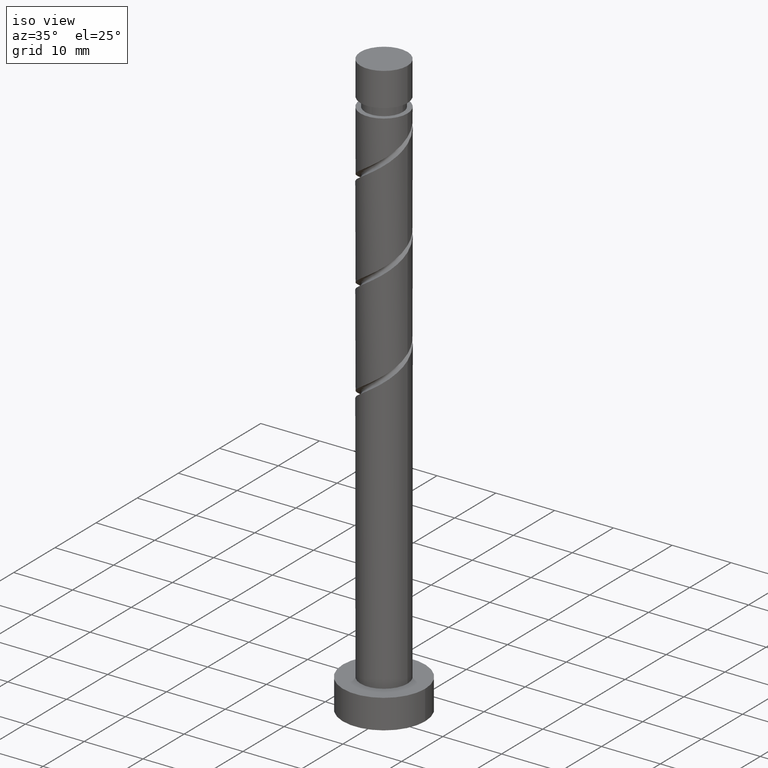
[diagram: clean part render]
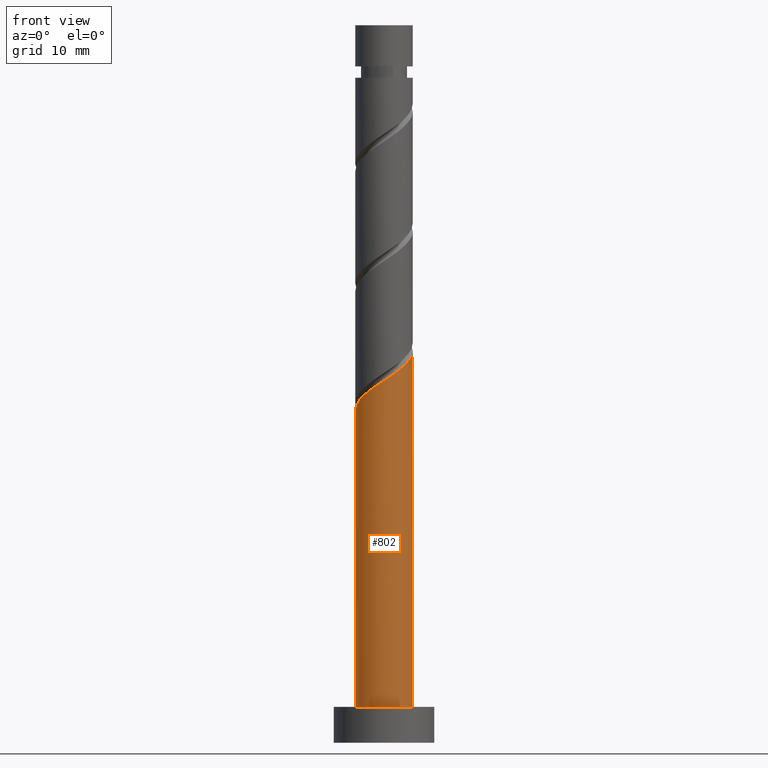
[diagram: tour spotlight — one face highlighted and labeled with its STEP entity id]
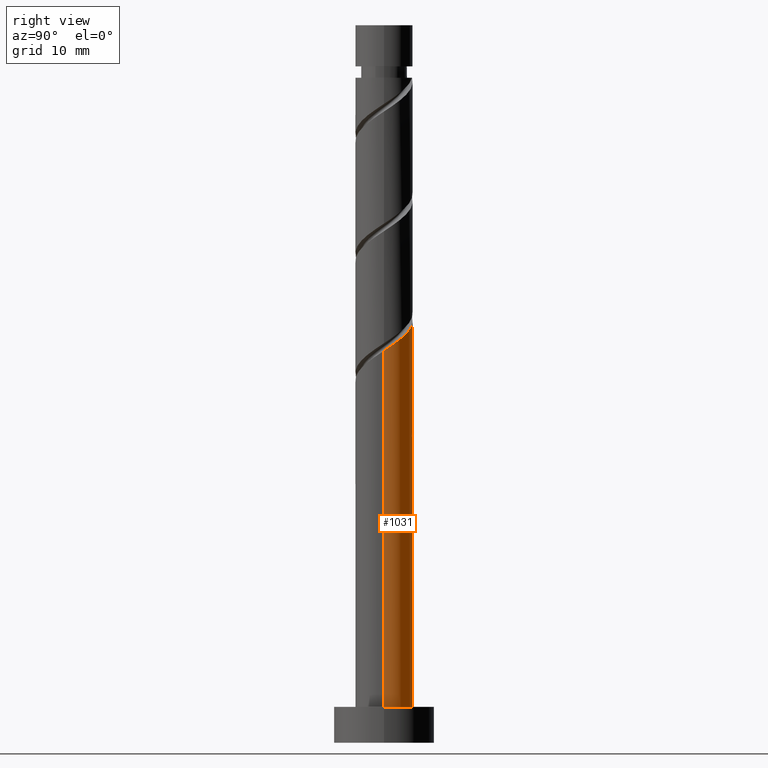
[diagram: tour spotlight — one face highlighted and labeled with its STEP entity id]
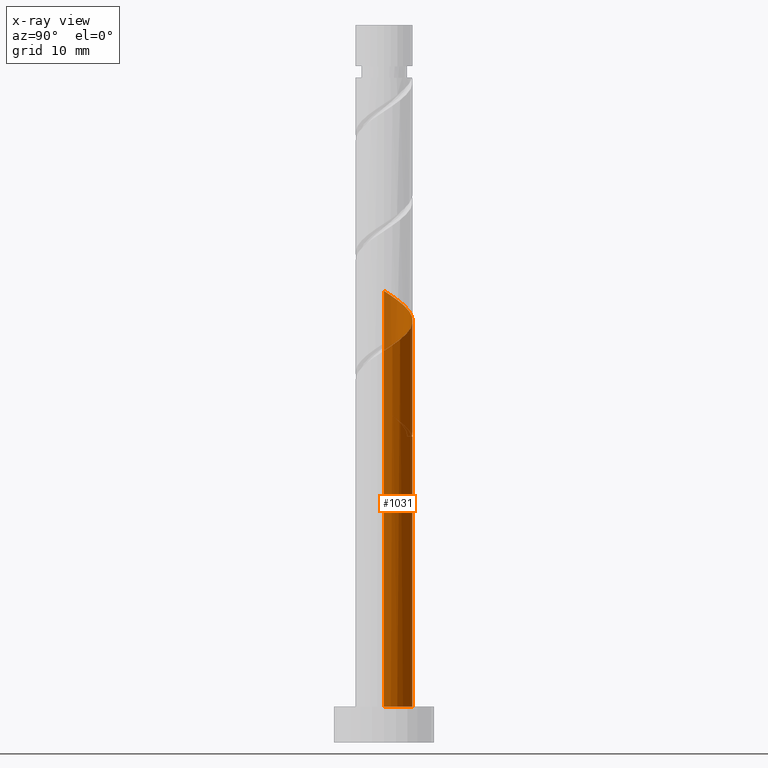
[diagram: x-ray of the same camera — body ghosted, this tour face saturated]
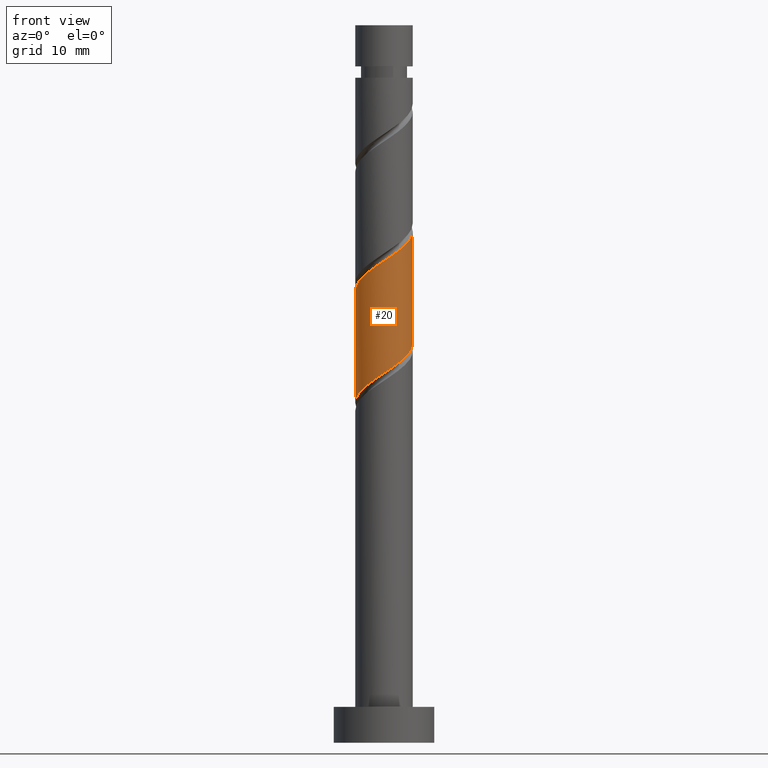
[diagram: tour spotlight — one face highlighted and labeled with its STEP entity id]
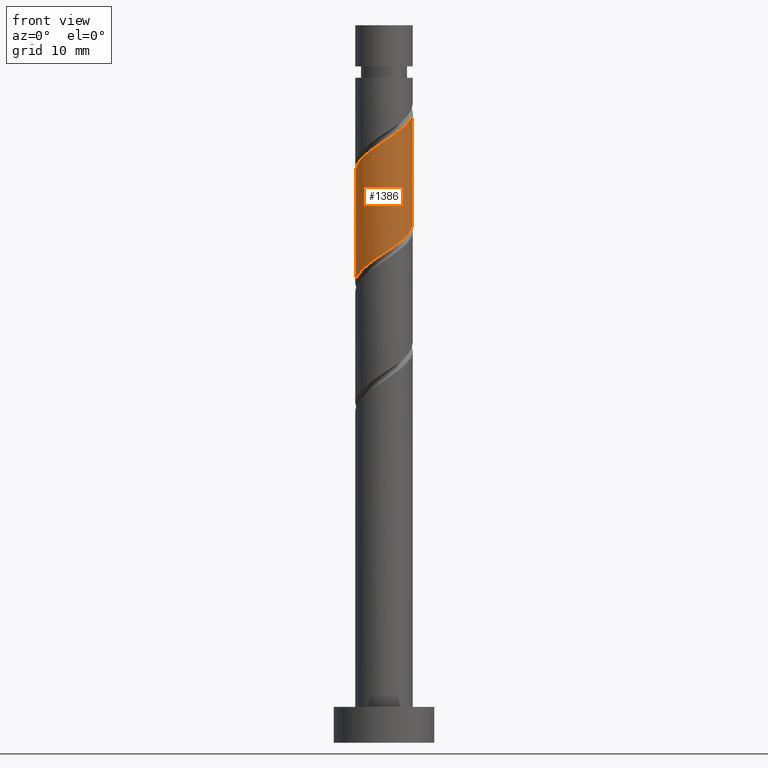
[diagram: tour spotlight — one face highlighted and labeled with its STEP entity id]
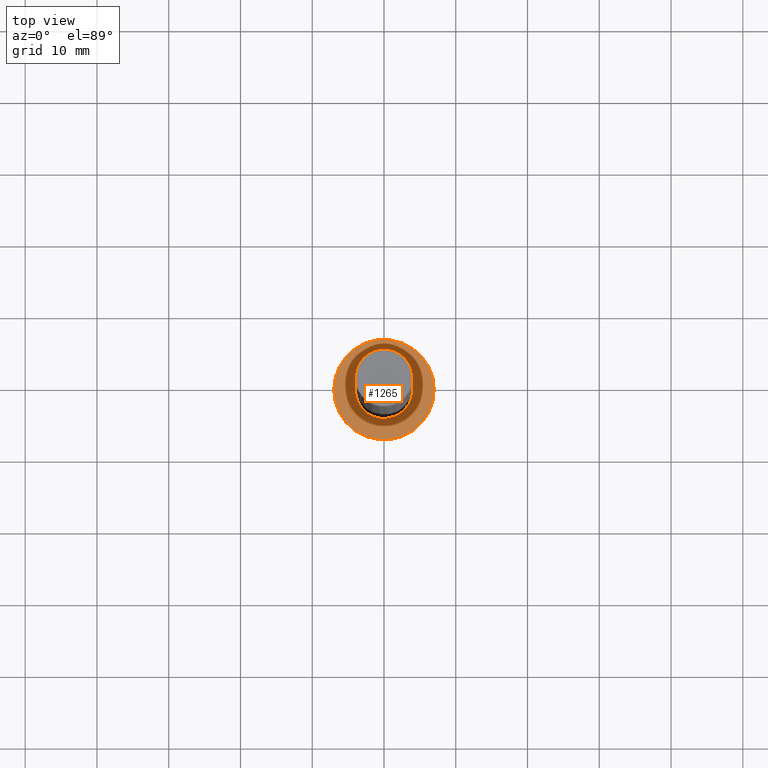
[diagram: tour spotlight — one face highlighted and labeled with its STEP entity id]
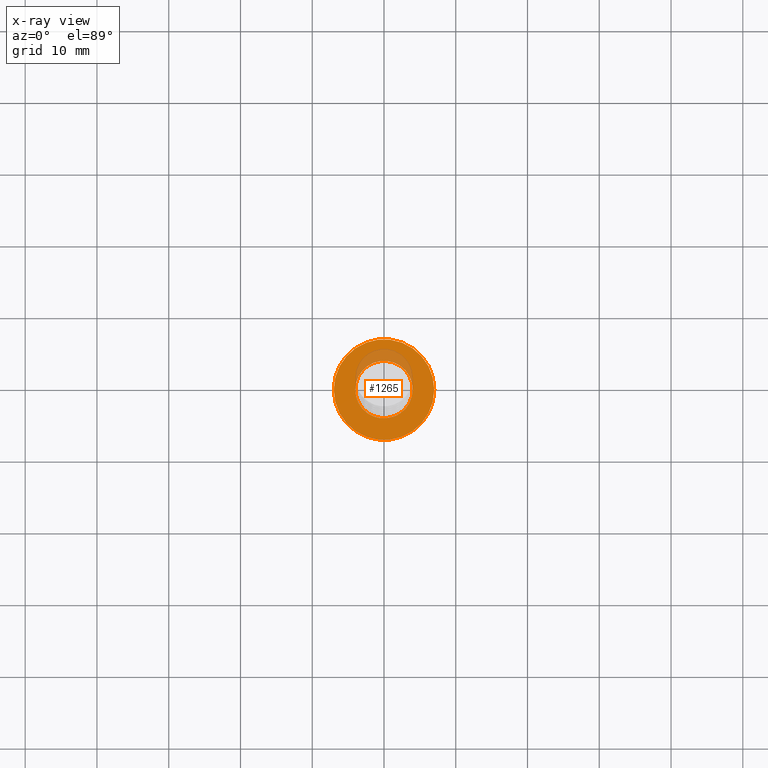
[diagram: x-ray of the same camera — body ghosted, this tour face saturated]
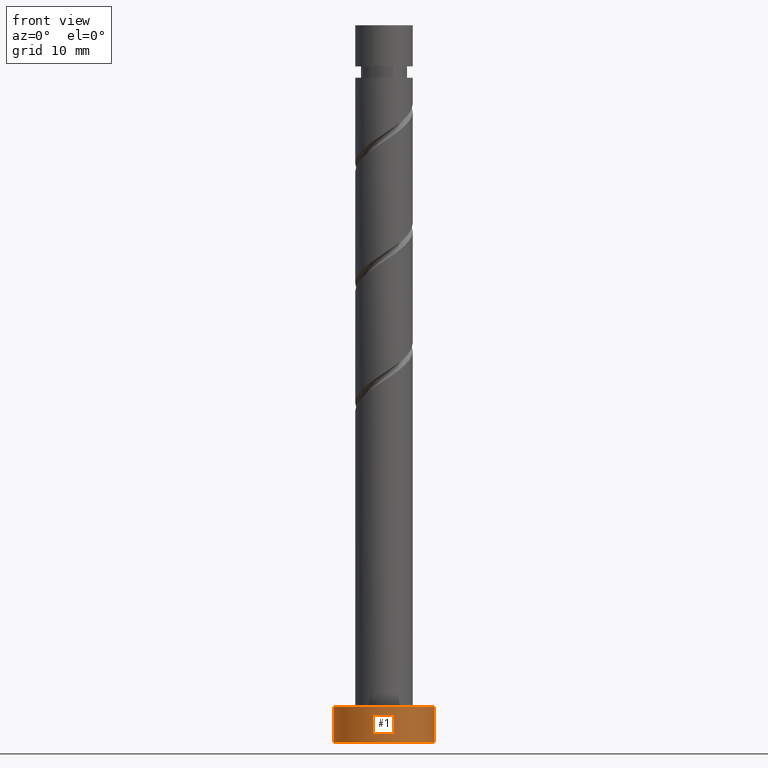
[diagram: tour spotlight — one face highlighted and labeled with its STEP entity id]
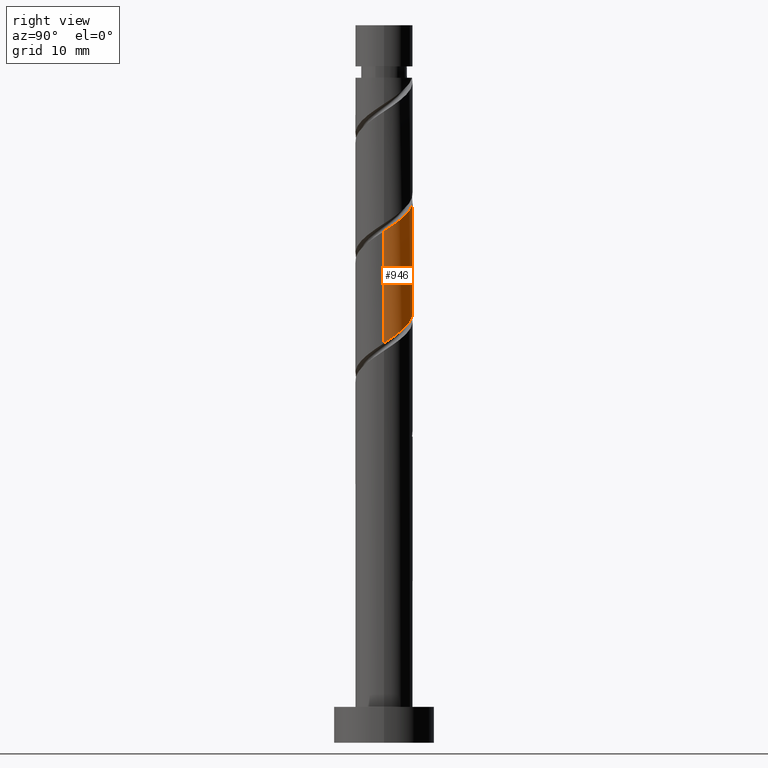
[diagram: tour spotlight — one face highlighted and labeled with its STEP entity id]
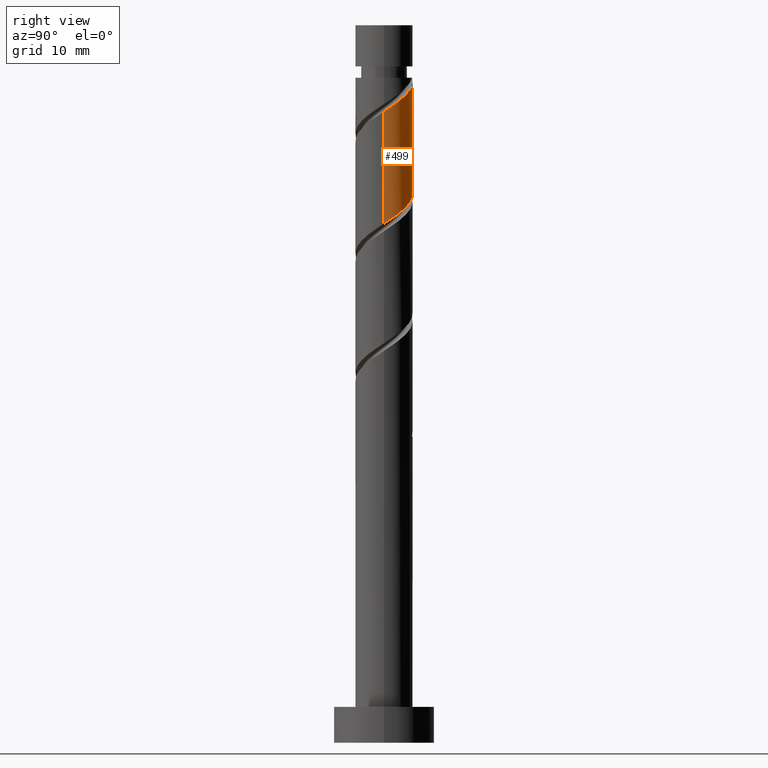
[diagram: tour spotlight — one face highlighted and labeled with its STEP entity id]
A machine part: a face-by-face anatomy tour. The part has 21 B-rep faces; the first image is the clean iso view, then the 8 largest visible faces are spotlighted one at a time (largest first), each with its STEP entity span.

Face 1 — front view, entity #802. In plain terms, the highlighted cylindrical surface (edge-blend (fillet) strip) has radius 4 mm, axis along (-0, -0, -1).
Definition (entity closure, byte-faithful):
#5 = CARTESIAN_POINT ( 'NONE',  ( -4.000000000000006217, -0.05160669732808480237, 46.33904958792853535 ) ) ;
#101 = EDGE_CURVE ( 'NONE', #729, #1119, #242, .T. ) ;
#104 = CARTESIAN_POINT ( 'NONE',  ( -0.5927330798976050419, -3.955839670157924814, 50.07662784305901482 ) ) ;
#112 = CARTESIAN_POINT ( 'NONE',  ( 3.792814557677653298, -1.270652482415441931, 53.78033154676271721 ) ) ;
#142 = VECTOR ( 'NONE', #468, 1000.000000000000000 ) ;
#169 = VERTEX_POINT ( 'NONE', #224 ) ;
#197 = DIRECTION ( 'NONE',  ( 0.000000000000000000, 0.000000000000000000, 1.000000000000000000 ) ) ;
#223 = VERTEX_POINT ( 'NONE', #980 ) ;
#224 = CARTESIAN_POINT ( 'NONE',  ( 4.000000000000006217, -3.548004554887252484E-15, 54.63836554732951356 ) ) ;
#232 = ORIENTED_EDGE ( 'NONE', *, *, #716, .F. ) ;
#234 = CARTESIAN_POINT ( 'NONE',  ( -1.290254345103320821, -3.851324835813549452, 49.61366488009603160 ) ) ;
#242 = CIRCLE ( 'NONE', #521, 4.000000000000000000 ) ;
#250 = EDGE_CURVE ( 'NONE', #223, #729, #1436, .T. ) ;
#314 = DIRECTION ( 'NONE',  ( -1.000000000000000000, 0.000000000000000000, 0.000000000000000000 ) ) ;
#318 = CARTESIAN_POINT ( 'NONE',  ( 2.088704843775643027, -3.411350476803610920, 51.92847969491085536 ) ) ;
#327 = CARTESIAN_POINT ( 'NONE',  ( 0.000000000000000000, 0.000000000000000000, 100.0000000000000000 ) ) ;
#335 = CARTESIAN_POINT ( 'NONE',  ( 4.000000000000005329, -0.6522174872818314872, 54.20844603496387748 ) ) ;
#386 = CARTESIAN_POINT ( 'NONE',  ( -4.000000000000000000, 0.000000000000000000, 100.0000000000000000 ) ) ;
#413 = AXIS2_PLACEMENT_3D ( 'NONE', #327, #886, #314 ) ;
#424 = DIRECTION ( 'NONE',  ( 1.000000000000000000, 0.000000000000000000, 0.000000000000000000 ) ) ;
#429 = CARTESIAN_POINT ( 'NONE',  ( 1.487191714062478631, -3.779645495497716112, 51.46551673194787924 ) ) ;
#436 = CARTESIAN_POINT ( 'NONE',  ( -2.529673159369203894, -3.177768552424688586, 48.68773895417012199 ) ) ;
#468 = DIRECTION ( 'NONE',  ( -0.000000000000000000, -0.000000000000000000, -1.000000000000000000 ) ) ;
#521 = AXIS2_PLACEMENT_3D ( 'NONE', #761, #197, #424 ) ;
#556 = CARTESIAN_POINT ( 'NONE',  ( -3.463976056615510668, -2.120926482744445618, 47.76181302824418395 ) ) ;
#573 = CYLINDRICAL_SURFACE ( 'NONE', #413, 4.000000000000000000 ) ;
#680 = CARTESIAN_POINT ( 'NONE',  ( -1.909963752236263801, -3.514546694119118797, 49.15070191713309100 ) ) ;
#695 = LINE ( 'NONE', #1281, #1400 ) ;
#716 = EDGE_CURVE ( 'NONE', #223, #169, #1061, .T. ) ;
#729 = VERTEX_POINT ( 'NONE', #1002 ) ;
#761 = CARTESIAN_POINT ( 'NONE',  ( 0.000000000000000000, 0.000000000000000000, 5.000000000000000000 ) ) ;
#783 = CARTESIAN_POINT ( 'NONE',  ( 2.690217973488804315, -3.043055458109504396, 52.39144265787382437 ) ) ;
#795 = CARTESIAN_POINT ( 'NONE',  ( 4.000000000000006217, -3.548004554887252090E-15, 54.63836554732951356 ) ) ;
#802 = ADVANCED_FACE ( 'NONE', ( #1383 ), #573, .T. ) ;
#885 = CARTESIAN_POINT ( 'NONE',  ( -2.996824607992357503, -2.649347517584566436, 48.22477599120716718 ) ) ;
#886 = DIRECTION ( 'NONE',  ( -0.000000000000000000, -0.000000000000000000, -1.000000000000000000 ) ) ;
#926 = ORIENTED_EDGE ( 'NONE', *, *, #1401, .F. ) ;
#978 = ORIENTED_EDGE ( 'NONE', *, *, #101, .T. ) ;
#980 = CARTESIAN_POINT ( 'NONE',  ( -4.000000000000006217, 3.488248688699677647E-15, 46.30503221399617786 ) ) ;
#1002 = CARTESIAN_POINT ( 'NONE',  ( -4.000000000000000000, 0.000000000000000000, 5.000000000000000000 ) ) ;
#1032 = CARTESIAN_POINT ( 'NONE',  ( 0.1047881853081108344, -4.060354504502297956, 50.53959080602196963 ) ) ;
#1061 =( BOUNDED_CURVE ( )  B_SPLINE_CURVE ( 2, ( #1144, #5, #1375, #1477, #1390, #556, #885, #436, #680, #234, #104, #1032, #1480, #429, #318, #783, #1263, #1151, #112, #335, #795 ),
 .UNSPECIFIED., .F., .T. ) 
 B_SPLINE_CURVE_WITH_KNOTS ( ( 3, 2, 2, 2, 2, 2, 2, 2, 2, 2, 3 ),
 ( 0.05452480538552911815, 0.05555555555555558023, 0.06944444444444441977, 0.08333333333333337034, 0.09722222222222220989, 0.1111111111111111605, 0.1250000000000000000, 0.1388888888888888395, 0.1527777777777777901, 0.1666666666666666297, 0.1795248053855290626 ),
 .UNSPECIFIED. ) 
 CURVE ( )  GEOMETRIC_REPRESENTATION_ITEM ( )  RATIONAL_B_SPLINE_CURVE ( ( 0.9071930855141264738, 0.9080659294509740853, 0.9090909090909140566, 0.8952797754656487417, 0.9090909090909140566, 0.8952797754656487417, 0.9090909090909140566, 0.8952797754656487417, 0.9090909090909140566, 0.8952797754656487417, 0.9090909090909140566, 0.8952797754656487417, 0.9090909090909140566, 0.8952797754656487417, 0.9090909090909140566, 0.8952797754656487417, 0.9090909090909140566, 0.8952797754656487417, 0.9090909090909140566, 0.8963047551055888240, 0.9071930855141263628 ) ) 
 REPRESENTATION_ITEM ( '' )  );
#1119 = VERTEX_POINT ( 'NONE', #1216 ) ;
#1144 = CARTESIAN_POINT ( 'NONE',  ( -4.000000000000006217, 3.488248688699677647E-15, 46.30503221399617075 ) ) ;
#1151 = CARTESIAN_POINT ( 'NONE',  ( 3.568764241923622293, -1.939428021757852560, 53.31736858379974109 ) ) ;
#1155 = ORIENTED_EDGE ( 'NONE', *, *, #250, .T. ) ;
#1216 = CARTESIAN_POINT ( 'NONE',  ( 4.000000000000000000, 4.898587196589412829E-16, 5.000000000000000000 ) ) ;
#1263 = CARTESIAN_POINT ( 'NONE',  ( 3.129491107706214859, -2.491241739933678812, 52.85440562083677918 ) ) ;
#1281 = CARTESIAN_POINT ( 'NONE',  ( 4.000000000000000000, 4.898587196589412829E-16, 100.0000000000000000 ) ) ;
#1375 = CARTESIAN_POINT ( 'NONE',  ( -3.998668596011906384, -0.1031962173155086954, 46.37292413935530533 ) ) ;
#1383 = FACE_OUTER_BOUND ( 'NONE', #1416, .T. ) ;
#1390 = CARTESIAN_POINT ( 'NONE',  ( -3.722224187603818901, -1.464597930224245115, 47.29885006528124336 ) ) ;
#1396 = DIRECTION ( 'NONE',  ( -0.000000000000000000, -0.000000000000000000, -1.000000000000000000 ) ) ;
#1400 = VECTOR ( 'NONE', #1396, 1000.000000000000000 ) ;
#1401 = EDGE_CURVE ( 'NONE', #169, #1119, #695, .T. ) ;
#1416 = EDGE_LOOP ( 'NONE', ( #926, #232, #1155, #978 ) ) ;
#1436 = LINE ( 'NONE', #386, #142 ) ;
#1477 = CARTESIAN_POINT ( 'NONE',  ( -3.980472318592127134, -0.8082693777040446115, 46.83588710231826724 ) ) ;
#1480 = CARTESIAN_POINT ( 'NONE',  ( 0.7959899496852955725, -3.920000000000007034, 51.00255376898493154 ) ) ;

Face 2 — right view, entity #1031. An x-ray twin of the same camera follows (body ghosted, this face saturated) — the face is partly hidden behind the body. In plain terms, the highlighted cylindrical surface (edge-blend (fillet) strip) has radius 4 mm, axis along (-0, -0, -1).
Definition (entity closure, byte-faithful):
#18 = CARTESIAN_POINT ( 'NONE',  ( -0.7959899496852952394, 3.920000000000007034, 59.33588710231828856 ) ) ;
#59 = CARTESIAN_POINT ( 'NONE',  ( -1.487191714062479964, 3.779645495497714780, 43.13218339861454353 ) ) ;
#96 = VERTEX_POINT ( 'NONE', #875 ) ;
#111 = EDGE_CURVE ( 'NONE', #200, #96, #115, .T. ) ;
#115 = LINE ( 'NONE', #1043, #1335 ) ;
#142 = VECTOR ( 'NONE', #468, 1000.000000000000000 ) ;
#169 = VERTEX_POINT ( 'NONE', #224 ) ;
#185 = CYLINDRICAL_SURFACE ( 'NONE', #238, 4.000000000000000000 ) ;
#200 = VERTEX_POINT ( 'NONE', #482 ) ;
#223 = VERTEX_POINT ( 'NONE', #980 ) ;
#224 = CARTESIAN_POINT ( 'NONE',  ( 4.000000000000006217, -3.548004554887252484E-15, 54.63836554732951356 ) ) ;
#227 = CARTESIAN_POINT ( 'NONE',  ( -0.1047881853081119863, 4.060354504502297956, 58.87292413935529112 ) ) ;
#233 = CARTESIAN_POINT ( 'NONE',  ( -3.568764241923622293, 1.939428021757852116, 61.65070191713308390 ) ) ;
#238 = AXIS2_PLACEMENT_3D ( 'NONE', #1086, #518, #510 ) ;
#241 = CARTESIAN_POINT ( 'NONE',  ( 1.909963752236263801, 3.514546694119118797, 57.48403525046641249 ) ) ;
#246 = CARTESIAN_POINT ( 'NONE',  ( 4.000000000000006217, -3.548004554887252090E-15, 54.63836554732951356 ) ) ;
#250 = EDGE_CURVE ( 'NONE', #223, #729, #1436, .T. ) ;
#325 = AXIS2_PLACEMENT_3D ( 'NONE', #484, #634, #1188 ) ;
#333 = CARTESIAN_POINT ( 'NONE',  ( 1.290254345103323264, 3.851324835813548564, 57.94699821342936730 ) ) ;
#354 = CARTESIAN_POINT ( 'NONE',  ( 3.463976056615512000, 2.120926482744443398, 56.09514636157751966 ) ) ;
#361 = ORIENTED_EDGE ( 'NONE', *, *, #250, .F. ) ;
#386 = CARTESIAN_POINT ( 'NONE',  ( -4.000000000000000000, 0.000000000000000000, 100.0000000000000000 ) ) ;
#396 = CARTESIAN_POINT ( 'NONE',  ( -2.690217973488805647, 3.043055458109504396, 44.05810932454048867 ) ) ;
#423 =( BOUNDED_CURVE ( )  B_SPLINE_CURVE ( 2, ( #1000, #59, #511, #396, #1128, #861, #1458, #526, #1323 ),
 .UNSPECIFIED., .F., .T. ) 
 B_SPLINE_CURVE_WITH_KNOTS ( ( 3, 2, 2, 2, 3 ),
 ( 0.000000000000000000, 0.01388888888888884128, 0.02777777777777779011, 0.04166666666666662966, 0.05452480538552911815 ),
 .UNSPECIFIED. ) 
 CURVE ( )  GEOMETRIC_REPRESENTATION_ITEM ( )  RATIONAL_B_SPLINE_CURVE ( ( 0.9090909090909140566, 0.8952797754656487417, 0.9090909090909140566, 0.8952797754656487417, 0.9090909090909140566, 0.8952797754656487417, 0.9090909090909140566, 0.8963047551055887130, 0.9071930855141264738 ) ) 
 REPRESENTATION_ITEM ( '' )  );
#430 = CARTESIAN_POINT ( 'NONE',  ( -3.463976056615505783, 2.120926482744443842, 45.90996117639232210 ) ) ;
#444 = CARTESIAN_POINT ( 'NONE',  ( -2.996824607992351730, 2.649347517584563327, 45.44699821342936730 ) ) ;
#450 = CARTESIAN_POINT ( 'NONE',  ( 2.996824607992357059, 2.649347517584567324, 56.55810932454050288 ) ) ;
#454 = DIRECTION ( 'NONE',  ( -0.000000000000000000, -0.000000000000000000, -1.000000000000000000 ) ) ;
#467 = CARTESIAN_POINT ( 'NONE',  ( -2.088704843775643027, 3.411350476803610920, 60.26181302824421238 ) ) ;
#468 = DIRECTION ( 'NONE',  ( -0.000000000000000000, -0.000000000000000000, -1.000000000000000000 ) ) ;
#477 = CARTESIAN_POINT ( 'NONE',  ( 3.980472318592127134, 0.8082693777040439453, 55.16922043565160294 ) ) ;
#482 = CARTESIAN_POINT ( 'NONE',  ( -4.000000000000006217, 3.488248688699677647E-15, 62.97169888066282795 ) ) ;
#484 = CARTESIAN_POINT ( 'NONE',  ( 0.000000000000000000, 0.000000000000000000, 5.000000000000000000 ) ) ;
#492 = DIRECTION ( 'NONE',  ( 0.000000000000000000, -0.000000000000000000, -1.000000000000000000 ) ) ;
#510 = DIRECTION ( 'NONE',  ( -1.000000000000000000, 0.000000000000000000, 0.000000000000000000 ) ) ;
#511 = CARTESIAN_POINT ( 'NONE',  ( -2.088704843775643027, 3.411350476803610920, 43.59514636157753387 ) ) ;
#517 = EDGE_CURVE ( 'NONE', #1119, #729, #1457, .T. ) ;
#518 = DIRECTION ( 'NONE',  ( -0.000000000000000000, -0.000000000000000000, -1.000000000000000000 ) ) ;
#526 = CARTESIAN_POINT ( 'NONE',  ( -4.000000000000006217, 0.6522174872818262692, 45.87511270163054178 ) ) ;
#572 = EDGE_CURVE ( 'NONE', #717, #1294, #693, .T. ) ;
#577 = CARTESIAN_POINT ( 'NONE',  ( -3.792814557677653298, 1.270652482415439932, 62.11366488009605291 ) ) ;
#583 = CARTESIAN_POINT ( 'NONE',  ( -4.000000000000006217, 3.488248688699677647E-15, 62.97169888066282795 ) ) ;
#584 = CARTESIAN_POINT ( 'NONE',  ( 0.7959899496852965717, 3.920000000000000817, 42.66922043565158873 ) ) ;
#589 = CARTESIAN_POINT ( 'NONE',  ( -3.129491107706214859, 2.491241739933678812, 61.18773895417012199 ) ) ;
#599 = CARTESIAN_POINT ( 'NONE',  ( -1.909963752236258916, 3.514546694119113468, 44.52107228750344348 ) ) ;
#606 = ORIENTED_EDGE ( 'NONE', *, *, #517, .T. ) ;
#634 = DIRECTION ( 'NONE',  ( 0.000000000000000000, 0.000000000000000000, 1.000000000000000000 ) ) ;
#642 = EDGE_CURVE ( 'NONE', #717, #223, #423, .T. ) ;
#645 = AXIS2_PLACEMENT_3D ( 'NONE', #1447, #492, #973 ) ;
#665 = ORIENTED_EDGE ( 'NONE', *, *, #1420, .F. ) ;
#681 = CARTESIAN_POINT ( 'NONE',  ( -0.5927330798976027104, 3.955839670157917709, 43.59514636157751966 ) ) ;
#686 = CARTESIAN_POINT ( 'NONE',  ( -0.7959899496852950174, 3.920000000000006146, 42.66922043565158873 ) ) ;
#693 = CIRCLE ( 'NONE', #645, 4.000000000000000000 ) ;
#695 = LINE ( 'NONE', #1281, #1400 ) ;
#717 = VERTEX_POINT ( 'NONE', #686 ) ;
#729 = VERTEX_POINT ( 'NONE', #1002 ) ;
#807 = CARTESIAN_POINT ( 'NONE',  ( -1.290254345103319489, 3.851324835813545455, 44.05810932454048867 ) ) ;
#824 = CARTESIAN_POINT ( 'NONE',  ( 0.1047881853081125969, 4.060354504502291739, 43.13218339861456485 ) ) ;
#844 = FACE_OUTER_BOUND ( 'NONE', #1234, .T. ) ;
#861 = CARTESIAN_POINT ( 'NONE',  ( -3.568764241923622293, 1.939428021757852116, 44.98403525046641249 ) ) ;
#875 = CARTESIAN_POINT ( 'NONE',  ( -4.000000000000000000, -2.524685346425049280E-15, 47.36674199064033530 ) ) ;
#887 = ORIENTED_EDGE ( 'NONE', *, *, #642, .F. ) ;
#895 =( BOUNDED_CURVE ( )  B_SPLINE_CURVE ( 2, ( #1373, #1395, #931, #944, #1409, #430, #444, #1163, #599, #807, #681, #824, #920 ),
 .UNSPECIFIED., .F., .T. ) 
 B_SPLINE_CURVE_WITH_KNOTS ( ( 3, 2, 2, 2, 2, 2, 3 ),
 ( 0.9295248053855290626, 0.9305555555555555802, 0.9444444444444444198, 0.9583333333333333703, 0.9722222222222222099, 0.9861111111111111605, 1.000000000000000000 ),
 .UNSPECIFIED. ) 
 CURVE ( )  GEOMETRIC_REPRESENTATION_ITEM ( )  RATIONAL_B_SPLINE_CURVE ( ( 0.9071930855141210337, 0.9080659294509687562, 0.9090909090909088386, 0.8952797754656434126, 0.9090909090909088386, 0.8952797754656434126, 0.9090909090909088386, 0.8952797754656434126, 0.9090909090909088386, 0.8952797754656434126, 0.9090909090909088386, 0.8952797754656434126, 0.9090909090909088386 ) ) 
 REPRESENTATION_ITEM ( '' )  );
#913 = CARTESIAN_POINT ( 'NONE',  ( 3.998668596011906384, 0.1031962173155090007, 54.70625747268865524 ) ) ;
#920 = CARTESIAN_POINT ( 'NONE',  ( 0.7959899496852966827, 3.920000000000000817, 42.66922043565158162 ) ) ;
#931 = CARTESIAN_POINT ( 'NONE',  ( -3.998668596011898835, 0.1031962173155094725, 47.29885006528121494 ) ) ;
#942 = CARTESIAN_POINT ( 'NONE',  ( -4.000000000000005329, 0.6522174872818291558, 62.54177936829722029 ) ) ;
#944 = CARTESIAN_POINT ( 'NONE',  ( -3.980472318592122694, 0.8082693777040443894, 46.83588710231826724 ) ) ;
#950 = CARTESIAN_POINT ( 'NONE',  ( 2.529673159369203894, 3.177768552424688142, 57.02107228750343637 ) ) ;
#966 =( BOUNDED_CURVE ( )  B_SPLINE_CURVE ( 2, ( #246, #1297, #913, #477, #1389, #354, #450, #950, #241, #333, #1414, #227, #18, #1054, #467, #1174, #589, #233, #577, #942, #583 ),
 .UNSPECIFIED., .F., .T. ) 
 B_SPLINE_CURVE_WITH_KNOTS ( ( 3, 2, 2, 2, 2, 2, 2, 2, 2, 2, 3 ),
 ( 0.1795248053855290626, 0.1805555555555555802, 0.1944444444444444198, 0.2083333333333333703, 0.2222222222222222099, 0.2361111111111111605, 0.2500000000000000000, 0.2638888888888888395, 0.2777777777777777901, 0.2916666666666666297, 0.3045248053855290626 ),
 .UNSPECIFIED. ) 
 CURVE ( )  GEOMETRIC_REPRESENTATION_ITEM ( )  RATIONAL_B_SPLINE_CURVE ( ( 0.9071930855141263628, 0.9080659294509739743, 0.9090909090909140566, 0.8952797754656487417, 0.9090909090909140566, 0.8952797754656487417, 0.9090909090909140566, 0.8952797754656487417, 0.9090909090909140566, 0.8952797754656487417, 0.9090909090909140566, 0.8952797754656487417, 0.9090909090909140566, 0.8952797754656487417, 0.9090909090909140566, 0.8952797754656487417, 0.9090909090909140566, 0.8952797754656487417, 0.9090909090909140566, 0.8963047551055888240, 0.9071930855141263628 ) ) 
 REPRESENTATION_ITEM ( '' )  );
#973 = DIRECTION ( 'NONE',  ( -1.000000000000000000, 0.000000000000000000, 0.000000000000000000 ) ) ;
#980 = CARTESIAN_POINT ( 'NONE',  ( -4.000000000000006217, 3.488248688699677647E-15, 46.30503221399617786 ) ) ;
#1000 = CARTESIAN_POINT ( 'NONE',  ( -0.7959899496852951284, 3.920000000000006146, 42.66922043565158873 ) ) ;
#1002 = CARTESIAN_POINT ( 'NONE',  ( -4.000000000000000000, 0.000000000000000000, 5.000000000000000000 ) ) ;
#1031 = ADVANCED_FACE ( 'NONE', ( #844 ), #185, .T. ) ;
#1043 = CARTESIAN_POINT ( 'NONE',  ( -4.000000000000000000, 0.000000000000000000, 100.0000000000000000 ) ) ;
#1054 = CARTESIAN_POINT ( 'NONE',  ( -1.487191714062479964, 3.779645495497714780, 59.79885006528122204 ) ) ;
#1082 = ORIENTED_EDGE ( 'NONE', *, *, #1360, .F. ) ;
#1086 = CARTESIAN_POINT ( 'NONE',  ( 0.000000000000000000, 0.000000000000000000, 100.0000000000000000 ) ) ;
#1119 = VERTEX_POINT ( 'NONE', #1216 ) ;
#1128 = CARTESIAN_POINT ( 'NONE',  ( -3.129491107706214859, 2.491241739933678812, 44.52107228750345058 ) ) ;
#1163 = CARTESIAN_POINT ( 'NONE',  ( -2.529673159369199897, 3.177768552424685033, 44.98403525046643381 ) ) ;
#1174 = CARTESIAN_POINT ( 'NONE',  ( -2.690217973488805647, 3.043055458109504396, 60.72477599120716008 ) ) ;
#1188 = DIRECTION ( 'NONE',  ( 1.000000000000000000, 0.000000000000000000, 0.000000000000000000 ) ) ;
#1191 = ORIENTED_EDGE ( 'NONE', *, *, #111, .F. ) ;
#1216 = CARTESIAN_POINT ( 'NONE',  ( 4.000000000000000000, 4.898587196589412829E-16, 5.000000000000000000 ) ) ;
#1234 = EDGE_LOOP ( 'NONE', ( #665, #1354, #606, #361, #887, #1315, #1082, #1191 ) ) ;
#1281 = CARTESIAN_POINT ( 'NONE',  ( 4.000000000000000000, 4.898587196589412829E-16, 100.0000000000000000 ) ) ;
#1294 = VERTEX_POINT ( 'NONE', #584 ) ;
#1297 = CARTESIAN_POINT ( 'NONE',  ( 4.000000000000006217, 0.05160669732808213089, 54.67238292126187815 ) ) ;
#1315 = ORIENTED_EDGE ( 'NONE', *, *, #572, .T. ) ;
#1323 = CARTESIAN_POINT ( 'NONE',  ( -4.000000000000006217, 3.488248688699677647E-15, 46.30503221399617075 ) ) ;
#1335 = VECTOR ( 'NONE', #454, 1000.000000000000000 ) ;
#1354 = ORIENTED_EDGE ( 'NONE', *, *, #1401, .T. ) ;
#1360 = EDGE_CURVE ( 'NONE', #96, #1294, #895, .T. ) ;
#1373 = CARTESIAN_POINT ( 'NONE',  ( -4.000000000000000000, -2.524685346425049280E-15, 47.36674199064033530 ) ) ;
#1389 = CARTESIAN_POINT ( 'NONE',  ( 3.722224187603820234, 1.464597930224243783, 55.63218339861456485 ) ) ;
#1395 = CARTESIAN_POINT ( 'NONE',  ( -4.000000000000000000, 0.05160669732808288723, 47.33272461670798492 ) ) ;
#1396 = DIRECTION ( 'NONE',  ( -0.000000000000000000, -0.000000000000000000, -1.000000000000000000 ) ) ;
#1400 = VECTOR ( 'NONE', #1396, 1000.000000000000000 ) ;
#1401 = EDGE_CURVE ( 'NONE', #169, #1119, #695, .T. ) ;
#1409 = CARTESIAN_POINT ( 'NONE',  ( -3.722224187603812240, 1.464597930224243783, 46.37292413935528401 ) ) ;
#1414 = CARTESIAN_POINT ( 'NONE',  ( 0.5927330798976073734, 3.955839670157923926, 58.40996117639235052 ) ) ;
#1420 = EDGE_CURVE ( 'NONE', #169, #200, #966, .T. ) ;
#1436 = LINE ( 'NONE', #386, #142 ) ;
#1447 = CARTESIAN_POINT ( 'NONE',  ( 0.000000000000000000, 0.000000000000000000, 42.66922043565158873 ) ) ;
#1457 = CIRCLE ( 'NONE', #325, 4.000000000000000000 ) ;
#1458 = CARTESIAN_POINT ( 'NONE',  ( -3.792814557677653298, 1.270652482415439932, 45.44699821342938151 ) ) ;

Face 3 — front view, entity #20. In plain terms, the highlighted cylindrical surface (edge-blend (fillet) strip) has radius 4 mm, axis along (-0, -0, -1).
Definition (entity closure, byte-faithful):
#20 = ADVANCED_FACE ( 'NONE', ( #306 ), #854, .T. ) ;
#51 = VERTEX_POINT ( 'NONE', #298 ) ;
#57 = CARTESIAN_POINT ( 'NONE',  ( 3.792814557677653298, -1.270652482415441931, 70.44699821342935309 ) ) ;
#82 = CARTESIAN_POINT ( 'NONE',  ( 2.996824607992351286, -2.649347517584564216, 53.78033154676269589 ) ) ;
#88 = DIRECTION ( 'NONE',  ( -0.000000000000000000, -0.000000000000000000, -1.000000000000000000 ) ) ;
#96 = VERTEX_POINT ( 'NONE', #875 ) ;
#111 = EDGE_CURVE ( 'NONE', #200, #96, #115, .T. ) ;
#115 = LINE ( 'NONE', #1043, #1335 ) ;
#148 = CARTESIAN_POINT ( 'NONE',  ( 0.1047881853081108344, -4.060354504502297956, 67.20625747268861971 ) ) ;
#166 = CARTESIAN_POINT ( 'NONE',  ( -1.290254345103320821, -3.851324835813549452, 66.28033154676269589 ) ) ;
#191 = CARTESIAN_POINT ( 'NONE',  ( 3.463976056615504895, -2.120926482744446062, 54.24329450972567201 ) ) ;
#200 = VERTEX_POINT ( 'NONE', #482 ) ;
#209 = ORIENTED_EDGE ( 'NONE', *, *, #111, .T. ) ;
#211 = CARTESIAN_POINT ( 'NONE',  ( -3.568764241923617409, -1.939428021757849230, 48.68773895417011488 ) ) ;
#258 = VECTOR ( 'NONE', #494, 1000.000000000000000 ) ;
#263 = CARTESIAN_POINT ( 'NONE',  ( -0.5927330798976050419, -3.955839670157924814, 66.74329450972567201 ) ) ;
#270 = CARTESIAN_POINT ( 'NONE',  ( -4.000000000000006217, -0.05160669732808201293, 63.00571625459519254 ) ) ;
#282 = CARTESIAN_POINT ( 'NONE',  ( 2.088704843775643027, -3.411350476803610920, 68.59514636157751966 ) ) ;
#298 = CARTESIAN_POINT ( 'NONE',  ( 4.000000000000006217, -3.548004554887252484E-15, 71.30503221399618496 ) ) ;
#306 = FACE_OUTER_BOUND ( 'NONE', #629, .T. ) ;
#332 = ORIENTED_EDGE ( 'NONE', *, *, #536, .F. ) ;
#346 = CARTESIAN_POINT ( 'NONE',  ( -4.000000000000000000, -2.524685346425049280E-15, 47.36674199064033530 ) ) ;
#372 = CARTESIAN_POINT ( 'NONE',  ( -2.996824607992357503, -2.649347517584566436, 64.89144265787383858 ) ) ;
#402 = CARTESIAN_POINT ( 'NONE',  ( 0.000000000000000000, 0.000000000000000000, 100.0000000000000000 ) ) ;
#438 = ORIENTED_EDGE ( 'NONE', *, *, #639, .F. ) ;
#454 = DIRECTION ( 'NONE',  ( -0.000000000000000000, -0.000000000000000000, -1.000000000000000000 ) ) ;
#475 =( BOUNDED_CURVE ( )  B_SPLINE_CURVE ( 2, ( #640, #620, #1231, #646, #1120, #191, #82, #1429, #848, #1136, #897, #539, #1021, #563, #882, #768, #1345, #211, #554, #524, #346 ),
 .UNSPECIFIED., .F., .T. ) 
 B_SPLINE_CURVE_WITH_KNOTS ( ( 3, 2, 2, 2, 2, 2, 2, 2, 2, 2, 3 ),
 ( 0.8045248053855290626, 0.8055555555555555802, 0.8194444444444444198, 0.8333333333333333703, 0.8472222222222222099, 0.8611111111111111605, 0.8750000000000000000, 0.8888888888888888395, 0.9027777777777777901, 0.9166666666666666297, 0.9295248053855290626 ),
 .UNSPECIFIED. ) 
 CURVE ( )  GEOMETRIC_REPRESENTATION_ITEM ( )  RATIONAL_B_SPLINE_CURVE ( ( 0.9071930855141210337, 0.9080659294509687562, 0.9090909090909088386, 0.8952797754656434126, 0.9090909090909088386, 0.8952797754656434126, 0.9090909090909088386, 0.8952797754656434126, 0.9090909090909088386, 0.8952797754656434126, 0.9090909090909088386, 0.8952797754656434126, 0.9090909090909088386, 0.8952797754656434126, 0.9090909090909088386, 0.8952797754656434126, 0.9090909090909088386, 0.8952797754656434126, 0.9090909090909088386, 0.8963047551055834949, 0.9071930855141210337 ) ) 
 REPRESENTATION_ITEM ( '' )  );
#482 = CARTESIAN_POINT ( 'NONE',  ( -4.000000000000006217, 3.488248688699677647E-15, 62.97169888066282795 ) ) ;
#488 = ORIENTED_EDGE ( 'NONE', *, *, #1293, .F. ) ;
#494 = DIRECTION ( 'NONE',  ( -0.000000000000000000, -0.000000000000000000, -1.000000000000000000 ) ) ;
#509 = CARTESIAN_POINT ( 'NONE',  ( -4.000000000000006217, 3.488248688699677647E-15, 62.97169888066282795 ) ) ;
#524 = CARTESIAN_POINT ( 'NONE',  ( -4.000000000000000888, -0.6522174872818270464, 47.79666150300597849 ) ) ;
#536 = EDGE_CURVE ( 'NONE', #200, #51, #1317, .T. ) ;
#539 = CARTESIAN_POINT ( 'NONE',  ( -0.1047881853081140957, -4.060354504502291739, 51.46551673194790055 ) ) ;
#554 = CARTESIAN_POINT ( 'NONE',  ( -3.792814557677647969, -1.270652482415436824, 48.22477599120713876 ) ) ;
#563 = CARTESIAN_POINT ( 'NONE',  ( -1.487191714062479519, -3.779645495497709895, 50.53959080602197673 ) ) ;
#615 = CARTESIAN_POINT ( 'NONE',  ( 1.487191714062478631, -3.779645495497716112, 68.13218339861455775 ) ) ;
#620 = CARTESIAN_POINT ( 'NONE',  ( 4.000000000000000888, -0.05160669732808424726, 55.66605795004132773 ) ) ;
#625 = CARTESIAN_POINT ( 'NONE',  ( 0.7959899496852955725, -3.920000000000007034, 67.66922043565161005 ) ) ;
#629 = EDGE_LOOP ( 'NONE', ( #438, #332, #209, #488 ) ) ;
#635 = CARTESIAN_POINT ( 'NONE',  ( 4.000000000000000888, 1.112953007743586956E-15, 55.70007532397369232 ) ) ;
#639 = EDGE_CURVE ( 'NONE', #51, #1146, #643, .T. ) ;
#640 = CARTESIAN_POINT ( 'NONE',  ( 4.000000000000000888, 1.112953007743586956E-15, 55.70007532397369232 ) ) ;
#643 = LINE ( 'NONE', #655, #258 ) ;
#646 = CARTESIAN_POINT ( 'NONE',  ( 3.980472318592122694, -0.8082693777040449445, 55.16922043565160294 ) ) ;
#655 = CARTESIAN_POINT ( 'NONE',  ( 4.000000000000000000, 4.898587196589412829E-16, 100.0000000000000000 ) ) ;
#724 = CARTESIAN_POINT ( 'NONE',  ( -1.909963752236263801, -3.514546694119118797, 65.81736858379977662 ) ) ;
#768 = CARTESIAN_POINT ( 'NONE',  ( -2.690217973488802539, -3.043055458109501288, 49.61366488009605291 ) ) ;
#825 = CARTESIAN_POINT ( 'NONE',  ( 3.568764241923622293, -1.939428021757852560, 69.98403525046641960 ) ) ;
#836 = CARTESIAN_POINT ( 'NONE',  ( 2.690217973488804315, -3.043055458109504396, 69.05810932454046736 ) ) ;
#848 = CARTESIAN_POINT ( 'NONE',  ( 1.909963752236258916, -3.514546694119113468, 52.85440562083677918 ) ) ;
#854 = CYLINDRICAL_SURFACE ( 'NONE', #1122, 4.000000000000000000 ) ;
#860 = CARTESIAN_POINT ( 'NONE',  ( -3.722224187603818901, -1.464597930224245115, 63.96551673194789345 ) ) ;
#868 = DIRECTION ( 'NONE',  ( -1.000000000000000000, 0.000000000000000000, 0.000000000000000000 ) ) ;
#875 = CARTESIAN_POINT ( 'NONE',  ( -4.000000000000000000, -2.524685346425049280E-15, 47.36674199064033530 ) ) ;
#882 = CARTESIAN_POINT ( 'NONE',  ( -2.088704843775641251, -3.411350476803604703, 50.07662784305900061 ) ) ;
#897 = CARTESIAN_POINT ( 'NONE',  ( 0.5927330798976025994, -3.955839670157917709, 51.92847969491085536 ) ) ;
#953 = CARTESIAN_POINT ( 'NONE',  ( -3.998668596011906384, -0.1031962173155086954, 63.03959080602197673 ) ) ;
#991 = CARTESIAN_POINT ( 'NONE',  ( 4.000000000000005329, -0.6522174872818314872, 70.87511270163052757 ) ) ;
#1021 = CARTESIAN_POINT ( 'NONE',  ( -0.7959899496852959055, -3.920000000000000817, 51.00255376898491022 ) ) ;
#1043 = CARTESIAN_POINT ( 'NONE',  ( -4.000000000000000000, 0.000000000000000000, 100.0000000000000000 ) ) ;
#1107 = CARTESIAN_POINT ( 'NONE',  ( -3.980472318592127134, -0.8082693777040446115, 63.50255376898491022 ) ) ;
#1120 = CARTESIAN_POINT ( 'NONE',  ( 3.722224187603812240, -1.464597930224243560, 54.70625747268863392 ) ) ;
#1122 = AXIS2_PLACEMENT_3D ( 'NONE', #402, #88, #868 ) ;
#1136 = CARTESIAN_POINT ( 'NONE',  ( 1.290254345103317490, -3.851324835813545455, 52.39144265787382437 ) ) ;
#1146 = VERTEX_POINT ( 'NONE', #635 ) ;
#1193 = CARTESIAN_POINT ( 'NONE',  ( 3.129491107706214859, -2.491241739933678812, 69.52107228750345769 ) ) ;
#1231 = CARTESIAN_POINT ( 'NONE',  ( 3.998668596011898835, -0.1031962173155107215, 55.63218339861455064 ) ) ;
#1293 = EDGE_CURVE ( 'NONE', #1146, #96, #475, .T. ) ;
#1314 = CARTESIAN_POINT ( 'NONE',  ( 4.000000000000006217, -3.548004554887252090E-15, 71.30503221399618496 ) ) ;
#1317 =( BOUNDED_CURVE ( )  B_SPLINE_CURVE ( 2, ( #509, #270, #953, #1107, #860, #1438, #372, #1328, #724, #166, #263, #148, #625, #615, #282, #836, #1193, #825, #57, #991, #1314 ),
 .UNSPECIFIED., .F., .T. ) 
 B_SPLINE_CURVE_WITH_KNOTS ( ( 3, 2, 2, 2, 2, 2, 2, 2, 2, 2, 3 ),
 ( 0.3045248053855290626, 0.3055555555555555802, 0.3194444444444444198, 0.3333333333333333703, 0.3472222222222222099, 0.3611111111111111605, 0.3750000000000000000, 0.3888888888888888395, 0.4027777777777777901, 0.4166666666666666297, 0.4295248053855290626 ),
 .UNSPECIFIED. ) 
 CURVE ( )  GEOMETRIC_REPRESENTATION_ITEM ( )  RATIONAL_B_SPLINE_CURVE ( ( 0.9071930855141263628, 0.9080659294509739743, 0.9090909090909140566, 0.8952797754656487417, 0.9090909090909140566, 0.8952797754656487417, 0.9090909090909140566, 0.8952797754656487417, 0.9090909090909140566, 0.8952797754656487417, 0.9090909090909140566, 0.8952797754656487417, 0.9090909090909140566, 0.8952797754656487417, 0.9090909090909140566, 0.8952797754656487417, 0.9090909090909140566, 0.8952797754656487417, 0.9090909090909140566, 0.8963047551055888240, 0.9071930855141263628 ) ) 
 REPRESENTATION_ITEM ( '' )  );
#1328 = CARTESIAN_POINT ( 'NONE',  ( -2.529673159369203894, -3.177768552424688586, 65.35440562083677207 ) ) ;
#1335 = VECTOR ( 'NONE', #454, 1000.000000000000000 ) ;
#1345 = CARTESIAN_POINT ( 'NONE',  ( -3.129491107706210418, -2.491241739933673927, 49.15070191713308390 ) ) ;
#1429 = CARTESIAN_POINT ( 'NONE',  ( 2.529673159369199009, -3.177768552424685033, 53.31736858379974819 ) ) ;
#1438 = CARTESIAN_POINT ( 'NONE',  ( -3.463976056615510668, -2.120926482744445618, 64.42847969491084825 ) ) ;

Face 4 — front view, entity #1386. In plain terms, the highlighted cylindrical surface (edge-blend (fillet) strip) has radius 4 mm, axis along (-0, -0, -1).
Definition (entity closure, byte-faithful):
#8 = CYLINDRICAL_SURFACE ( 'NONE', #514, 4.000000000000000000 ) ;
#25 = VERTEX_POINT ( 'NONE', #1332 ) ;
#27 = CARTESIAN_POINT ( 'NONE',  ( 0.000000000000000000, 0.000000000000000000, 100.0000000000000000 ) ) ;
#66 = EDGE_CURVE ( 'NONE', #25, #915, #463, .T. ) ;
#70 = CARTESIAN_POINT ( 'NONE',  ( 0.5927330798976025994, -3.955839670157917709, 68.59514636157751966 ) ) ;
#78 = CARTESIAN_POINT ( 'NONE',  ( -2.088704843775641251, -3.411350476803604703, 66.74329450972564359 ) ) ;
#85 = ORIENTED_EDGE ( 'NONE', *, *, #66, .F. ) ;
#107 = EDGE_LOOP ( 'NONE', ( #507, #676, #498, #85 ) ) ;
#131 = DIRECTION ( 'NONE',  ( -0.000000000000000000, -0.000000000000000000, -1.000000000000000000 ) ) ;
#187 = CARTESIAN_POINT ( 'NONE',  ( -1.487191714062479519, -3.779645495497709895, 67.20625747268863392 ) ) ;
#188 = CARTESIAN_POINT ( 'NONE',  ( 2.996824607992351286, -2.649347517584564216, 70.44699821342938151 ) ) ;
#206 = CARTESIAN_POINT ( 'NONE',  ( -3.980472318592127134, -0.8082693777040446115, 80.16922043565159584 ) ) ;
#216 = CARTESIAN_POINT ( 'NONE',  ( -2.996824607992357503, -2.649347517584566436, 81.55810932454050999 ) ) ;
#293 = CARTESIAN_POINT ( 'NONE',  ( 3.998668596011898835, -0.1031962173155107215, 72.29885006528121494 ) ) ;
#321 =( BOUNDED_CURVE ( )  B_SPLINE_CURVE ( 2, ( #789, #1248, #322, #206, #892, #1255, #216, #673, #557, #1033, #1482, #1189, #955, #923, #607, #1397, #366, #459, #485, #702, #338 ),
 .UNSPECIFIED., .F., .T. ) 
 B_SPLINE_CURVE_WITH_KNOTS ( ( 3, 2, 2, 2, 2, 2, 2, 2, 2, 2, 3 ),
 ( 0.5545248053855291737, 0.5555555555555555802, 0.5694444444444444198, 0.5833333333333332593, 0.5972222222222222099, 0.6111111111111111605, 0.6250000000000000000, 0.6388888888888888395, 0.6527777777777777901, 0.6666666666666667407, 0.6795248053855288406 ),
 .UNSPECIFIED. ) 
 CURVE ( )  GEOMETRIC_REPRESENTATION_ITEM ( )  RATIONAL_B_SPLINE_CURVE ( ( 0.9071930855141264738, 0.9080659294509740853, 0.9090909090909140566, 0.8952797754656487417, 0.9090909090909140566, 0.8952797754656487417, 0.9090909090909140566, 0.8952797754656487417, 0.9090909090909140566, 0.8952797754656487417, 0.9090909090909140566, 0.8952797754656487417, 0.9090909090909140566, 0.8952797754656487417, 0.9090909090909140566, 0.8952797754656487417, 0.9090909090909140566, 0.8952797754656487417, 0.9090909090909140566, 0.8963047551055890461, 0.9071930855141259187 ) ) 
 REPRESENTATION_ITEM ( '' )  );
#322 = CARTESIAN_POINT ( 'NONE',  ( -3.998668596011906384, -0.1031962173155086954, 79.70625747268863392 ) ) ;
#338 = CARTESIAN_POINT ( 'NONE',  ( 4.000000000000006217, 1.576060970697284842E-15, 87.97169888066284216 ) ) ;
#366 = CARTESIAN_POINT ( 'NONE',  ( 3.129491107706214859, -2.491241739933678812, 86.18773895417012909 ) ) ;
#374 = CARTESIAN_POINT ( 'NONE',  ( -4.000000000000000000, -2.524685346425049280E-15, 64.03340865730703513 ) ) ;
#409 = CARTESIAN_POINT ( 'NONE',  ( -3.792814557677647969, -1.270652482415436824, 64.89144265787382437 ) ) ;
#411 = CARTESIAN_POINT ( 'NONE',  ( 2.529673159369199009, -3.177768552424685033, 69.98403525046640539 ) ) ;
#416 = LINE ( 'NONE', #544, #1305 ) ;
#459 = CARTESIAN_POINT ( 'NONE',  ( 3.568764241923622293, -1.939428021757852560, 86.65070191713306258 ) ) ;
#461 = VECTOR ( 'NONE', #1048, 1000.000000000000000 ) ;
#463 =( BOUNDED_CURVE ( )  B_SPLINE_CURVE ( 2, ( #537, #1338, #293, #745, #1235, #1229, #188, #411, #902, #1227, #70, #1003, #867, #187, #78, #527, #1006, #1463, #409, #1362, #1351 ),
 .UNSPECIFIED., .F., .T. ) 
 B_SPLINE_CURVE_WITH_KNOTS ( ( 3, 2, 2, 2, 2, 2, 2, 2, 2, 2, 3 ),
 ( 0.5545248053855290626, 0.5555555555555555802, 0.5694444444444444198, 0.5833333333333333703, 0.5972222222222222099, 0.6111111111111111605, 0.6250000000000000000, 0.6388888888888888395, 0.6527777777777777901, 0.6666666666666666297, 0.6795248053855290626 ),
 .UNSPECIFIED. ) 
 CURVE ( )  GEOMETRIC_REPRESENTATION_ITEM ( )  RATIONAL_B_SPLINE_CURVE ( ( 0.9071930855141210337, 0.9080659294509687562, 0.9090909090909088386, 0.8952797754656434126, 0.9090909090909088386, 0.8952797754656434126, 0.9090909090909088386, 0.8952797754656434126, 0.9090909090909088386, 0.8952797754656434126, 0.9090909090909088386, 0.8952797754656434126, 0.9090909090909088386, 0.8952797754656434126, 0.9090909090909088386, 0.8952797754656434126, 0.9090909090909088386, 0.8952797754656434126, 0.9090909090909088386, 0.8963047551055834949, 0.9071930855141210337 ) ) 
 REPRESENTATION_ITEM ( '' )  );
#485 = CARTESIAN_POINT ( 'NONE',  ( 3.792814557677653298, -1.270652482415441931, 87.11366488009603870 ) ) ;
#498 = ORIENTED_EDGE ( 'NONE', *, *, #675, .T. ) ;
#507 = ORIENTED_EDGE ( 'NONE', *, *, #1481, .F. ) ;
#514 = AXIS2_PLACEMENT_3D ( 'NONE', #27, #131, #1066 ) ;
#527 = CARTESIAN_POINT ( 'NONE',  ( -2.690217973488802539, -3.043055458109501288, 66.28033154676269589 ) ) ;
#537 = CARTESIAN_POINT ( 'NONE',  ( 4.000000000000000888, 1.112953007743586956E-15, 72.36674199064034951 ) ) ;
#544 = CARTESIAN_POINT ( 'NONE',  ( -4.000000000000000000, 0.000000000000000000, 100.0000000000000000 ) ) ;
#557 = CARTESIAN_POINT ( 'NONE',  ( -1.909963752236263801, -3.514546694119118797, 82.48403525046643381 ) ) ;
#570 = CARTESIAN_POINT ( 'NONE',  ( 4.000000000000000000, 4.898587196589412829E-16, 100.0000000000000000 ) ) ;
#607 = CARTESIAN_POINT ( 'NONE',  ( 2.088704843775643027, -3.411350476803610920, 85.26181302824423369 ) ) ;
#673 = CARTESIAN_POINT ( 'NONE',  ( -2.529673159369203894, -3.177768552424688586, 82.02107228750344348 ) ) ;
#675 = EDGE_CURVE ( 'NONE', #1056, #915, #416, .T. ) ;
#676 = ORIENTED_EDGE ( 'NONE', *, *, #830, .F. ) ;
#702 = CARTESIAN_POINT ( 'NONE',  ( 4.000000000000001776, -0.6522174872818425895, 87.54177936829719897 ) ) ;
#745 = CARTESIAN_POINT ( 'NONE',  ( 3.980472318592122694, -0.8082693777040449445, 71.83588710231823882 ) ) ;
#789 = CARTESIAN_POINT ( 'NONE',  ( -4.000000000000006217, -1.635816836884859678E-15, 79.63836554732951356 ) ) ;
#799 = CARTESIAN_POINT ( 'NONE',  ( 4.000000000000006217, 1.576060970697284842E-15, 87.97169888066284216 ) ) ;
#830 = EDGE_CURVE ( 'NONE', #1056, #1442, #321, .T. ) ;
#867 = CARTESIAN_POINT ( 'NONE',  ( -0.7959899496852959055, -3.920000000000000817, 67.66922043565159584 ) ) ;
#892 = CARTESIAN_POINT ( 'NONE',  ( -3.722224187603818901, -1.464597930224245115, 80.63218339861457196 ) ) ;
#902 = CARTESIAN_POINT ( 'NONE',  ( 1.909963752236258916, -3.514546694119113468, 69.52107228750342927 ) ) ;
#915 = VERTEX_POINT ( 'NONE', #374 ) ;
#923 = CARTESIAN_POINT ( 'NONE',  ( 1.487191714062478631, -3.779645495497716112, 84.79885006528120073 ) ) ;
#928 = LINE ( 'NONE', #570, #461 ) ;
#955 = CARTESIAN_POINT ( 'NONE',  ( 0.7959899496852955725, -3.920000000000007034, 84.33588710231829566 ) ) ;
#1003 = CARTESIAN_POINT ( 'NONE',  ( -0.1047881853081140957, -4.060354504502291739, 68.13218339861454353 ) ) ;
#1006 = CARTESIAN_POINT ( 'NONE',  ( -3.129491107706210418, -2.491241739933673927, 65.81736858379974819 ) ) ;
#1033 = CARTESIAN_POINT ( 'NONE',  ( -1.290254345103320821, -3.851324835813549452, 82.94699821342936730 ) ) ;
#1048 = DIRECTION ( 'NONE',  ( -0.000000000000000000, -0.000000000000000000, -1.000000000000000000 ) ) ;
#1056 = VERTEX_POINT ( 'NONE', #1336 ) ;
#1066 = DIRECTION ( 'NONE',  ( -1.000000000000000000, 0.000000000000000000, 0.000000000000000000 ) ) ;
#1075 = FACE_OUTER_BOUND ( 'NONE', #107, .T. ) ;
#1189 = CARTESIAN_POINT ( 'NONE',  ( 0.1047881853081108344, -4.060354504502297956, 83.87292413935527691 ) ) ;
#1227 = CARTESIAN_POINT ( 'NONE',  ( 1.290254345103317490, -3.851324835813545455, 69.05810932454046736 ) ) ;
#1229 = CARTESIAN_POINT ( 'NONE',  ( 3.463976056615504895, -2.120926482744446062, 70.90996117639234342 ) ) ;
#1235 = CARTESIAN_POINT ( 'NONE',  ( 3.722224187603812240, -1.464597930224243560, 71.37292413935530533 ) ) ;
#1248 = CARTESIAN_POINT ( 'NONE',  ( -4.000000000000007105, -0.05160669732808719629, 79.67238292126187105 ) ) ;
#1255 = CARTESIAN_POINT ( 'NONE',  ( -3.463976056615510668, -2.120926482744445618, 81.09514636157750544 ) ) ;
#1305 = VECTOR ( 'NONE', #1369, 1000.000000000000000 ) ;
#1332 = CARTESIAN_POINT ( 'NONE',  ( 4.000000000000000888, 1.112953007743586956E-15, 72.36674199064034951 ) ) ;
#1336 = CARTESIAN_POINT ( 'NONE',  ( -4.000000000000006217, -1.635816836884859678E-15, 79.63836554732951356 ) ) ;
#1338 = CARTESIAN_POINT ( 'NONE',  ( 4.000000000000000888, -0.05160669732808424726, 72.33272461670799203 ) ) ;
#1351 = CARTESIAN_POINT ( 'NONE',  ( -4.000000000000000000, -2.524685346425049280E-15, 64.03340865730703513 ) ) ;
#1362 = CARTESIAN_POINT ( 'NONE',  ( -4.000000000000000888, -0.6522174872818270464, 64.46332816967263568 ) ) ;
#1369 = DIRECTION ( 'NONE',  ( -0.000000000000000000, -0.000000000000000000, -1.000000000000000000 ) ) ;
#1386 = ADVANCED_FACE ( 'NONE', ( #1075 ), #8, .T. ) ;
#1397 = CARTESIAN_POINT ( 'NONE',  ( 2.690217973488804315, -3.043055458109504396, 85.72477599120715297 ) ) ;
#1442 = VERTEX_POINT ( 'NONE', #799 ) ;
#1463 = CARTESIAN_POINT ( 'NONE',  ( -3.568764241923617409, -1.939428021757849230, 65.35440562083678628 ) ) ;
#1481 = EDGE_CURVE ( 'NONE', #1442, #25, #928, .T. ) ;
#1482 = CARTESIAN_POINT ( 'NONE',  ( -0.5927330798976050419, -3.955839670157924814, 83.40996117639234342 ) ) ;

Face 5 — top view, entity #1265. An x-ray twin of the same camera follows (body ghosted, this face saturated) — the face is partly hidden behind the body. In plain terms, the highlighted planar face has unit normal (0, 0, 1).
Definition (entity closure, byte-faithful):
#90 = EDGE_LOOP ( 'NONE', ( #390, #1243 ) ) ;
#97 = VERTEX_POINT ( 'NONE', #304 ) ;
#101 = EDGE_CURVE ( 'NONE', #729, #1119, #242, .T. ) ;
#125 = DIRECTION ( 'NONE',  ( 0.000000000000000000, 0.000000000000000000, 1.000000000000000000 ) ) ;
#197 = DIRECTION ( 'NONE',  ( 0.000000000000000000, 0.000000000000000000, 1.000000000000000000 ) ) ;
#219 = DIRECTION ( 'NONE',  ( 1.000000000000000000, 0.000000000000000000, -0.000000000000000000 ) ) ;
#225 = ORIENTED_EDGE ( 'NONE', *, *, #517, .F. ) ;
#242 = CIRCLE ( 'NONE', #521, 4.000000000000000000 ) ;
#304 = CARTESIAN_POINT ( 'NONE',  ( -7.000000000000000000, 0.000000000000000000, 5.000000000000000000 ) ) ;
#325 = AXIS2_PLACEMENT_3D ( 'NONE', #484, #634, #1188 ) ;
#337 = DIRECTION ( 'NONE',  ( 1.000000000000000000, 0.000000000000000000, 0.000000000000000000 ) ) ;
#390 = ORIENTED_EDGE ( 'NONE', *, *, #683, .T. ) ;
#424 = DIRECTION ( 'NONE',  ( 1.000000000000000000, 0.000000000000000000, 0.000000000000000000 ) ) ;
#484 = CARTESIAN_POINT ( 'NONE',  ( 0.000000000000000000, 0.000000000000000000, 5.000000000000000000 ) ) ;
#487 = CIRCLE ( 'NONE', #801, 7.000000000000000000 ) ;
#493 = EDGE_LOOP ( 'NONE', ( #878, #225 ) ) ;
#517 = EDGE_CURVE ( 'NONE', #1119, #729, #1457, .T. ) ;
#521 = AXIS2_PLACEMENT_3D ( 'NONE', #761, #197, #424 ) ;
#593 = AXIS2_PLACEMENT_3D ( 'NONE', #661, #1474, #219 ) ;
#634 = DIRECTION ( 'NONE',  ( 0.000000000000000000, 0.000000000000000000, 1.000000000000000000 ) ) ;
#661 = CARTESIAN_POINT ( 'NONE',  ( 0.000000000000000000, 0.000000000000000000, 5.000000000000000000 ) ) ;
#683 = EDGE_CURVE ( 'NONE', #97, #1443, #487, .T. ) ;
#729 = VERTEX_POINT ( 'NONE', #1002 ) ;
#734 = CIRCLE ( 'NONE', #1378, 7.000000000000000000 ) ;
#761 = CARTESIAN_POINT ( 'NONE',  ( 0.000000000000000000, 0.000000000000000000, 5.000000000000000000 ) ) ;
#793 = CARTESIAN_POINT ( 'NONE',  ( 0.000000000000000000, 0.000000000000000000, 5.000000000000000000 ) ) ;
#801 = AXIS2_PLACEMENT_3D ( 'NONE', #1025, #1138, #1253 ) ;
#878 = ORIENTED_EDGE ( 'NONE', *, *, #101, .F. ) ;
#904 = PLANE ( 'NONE',  #593 ) ;
#1002 = CARTESIAN_POINT ( 'NONE',  ( -4.000000000000000000, 0.000000000000000000, 5.000000000000000000 ) ) ;
#1019 = FACE_OUTER_BOUND ( 'NONE', #90, .T. ) ;
#1025 = CARTESIAN_POINT ( 'NONE',  ( 0.000000000000000000, 0.000000000000000000, 5.000000000000000000 ) ) ;
#1060 = CARTESIAN_POINT ( 'NONE',  ( 7.000000000000000000, 8.572527594031473190E-16, 5.000000000000000000 ) ) ;
#1119 = VERTEX_POINT ( 'NONE', #1216 ) ;
#1138 = DIRECTION ( 'NONE',  ( 0.000000000000000000, 0.000000000000000000, 1.000000000000000000 ) ) ;
#1188 = DIRECTION ( 'NONE',  ( 1.000000000000000000, 0.000000000000000000, 0.000000000000000000 ) ) ;
#1216 = CARTESIAN_POINT ( 'NONE',  ( 4.000000000000000000, 4.898587196589412829E-16, 5.000000000000000000 ) ) ;
#1243 = ORIENTED_EDGE ( 'NONE', *, *, #1425, .T. ) ;
#1253 = DIRECTION ( 'NONE',  ( 1.000000000000000000, 0.000000000000000000, 0.000000000000000000 ) ) ;
#1264 = FACE_BOUND ( 'NONE', #493, .T. ) ;
#1265 = ADVANCED_FACE ( 'NONE', ( #1264, #1019 ), #904, .T. ) ;
#1378 = AXIS2_PLACEMENT_3D ( 'NONE', #793, #125, #337 ) ;
#1425 = EDGE_CURVE ( 'NONE', #1443, #97, #734, .T. ) ;
#1443 = VERTEX_POINT ( 'NONE', #1060 ) ;
#1457 = CIRCLE ( 'NONE', #325, 4.000000000000000000 ) ;
#1474 = DIRECTION ( 'NONE',  ( 0.000000000000000000, 0.000000000000000000, 1.000000000000000000 ) ) ;

Face 6 — front view, entity #1. In plain terms, the highlighted cylindrical surface (partial cylindrical patch) has radius 7 mm, axis along (-0, -0, -1).
Definition (entity closure, byte-faithful):
#1 = ADVANCED_FACE ( 'NONE', ( #1131 ), #864, .T. ) ;
#33 = VERTEX_POINT ( 'NONE', #288 ) ;
#49 = DIRECTION ( 'NONE',  ( -0.000000000000000000, -0.000000000000000000, -1.000000000000000000 ) ) ;
#72 = DIRECTION ( 'NONE',  ( -0.000000000000000000, -0.000000000000000000, -1.000000000000000000 ) ) ;
#97 = VERTEX_POINT ( 'NONE', #304 ) ;
#149 = CARTESIAN_POINT ( 'NONE',  ( -7.000000000000000000, 0.000000000000000000, 0.000000000000000000 ) ) ;
#194 = LINE ( 'NONE', #872, #930 ) ;
#251 = CARTESIAN_POINT ( 'NONE',  ( -7.000000000000000000, 0.000000000000000000, 5.000000000000000000 ) ) ;
#278 = ORIENTED_EDGE ( 'NONE', *, *, #588, .F. ) ;
#288 = CARTESIAN_POINT ( 'NONE',  ( 7.000000000000000000, 8.572527594031473190E-16, 0.000000000000000000 ) ) ;
#304 = CARTESIAN_POINT ( 'NONE',  ( -7.000000000000000000, 0.000000000000000000, 5.000000000000000000 ) ) ;
#382 = EDGE_CURVE ( 'NONE', #970, #33, #1453, .T. ) ;
#458 = CARTESIAN_POINT ( 'NONE',  ( 0.000000000000000000, 0.000000000000000000, 0.000000000000000000 ) ) ;
#487 = CIRCLE ( 'NONE', #801, 7.000000000000000000 ) ;
#522 = DIRECTION ( 'NONE',  ( -1.000000000000000000, 0.000000000000000000, 0.000000000000000000 ) ) ;
#549 = DIRECTION ( 'NONE',  ( 1.000000000000000000, 0.000000000000000000, 0.000000000000000000 ) ) ;
#588 = EDGE_CURVE ( 'NONE', #1443, #33, #194, .T. ) ;
#644 = CARTESIAN_POINT ( 'NONE',  ( 0.000000000000000000, 0.000000000000000000, 5.000000000000000000 ) ) ;
#683 = EDGE_CURVE ( 'NONE', #97, #1443, #487, .T. ) ;
#685 = LINE ( 'NONE', #251, #1045 ) ;
#801 = AXIS2_PLACEMENT_3D ( 'NONE', #1025, #1138, #1253 ) ;
#822 = ORIENTED_EDGE ( 'NONE', *, *, #1451, .T. ) ;
#864 = CYLINDRICAL_SURFACE ( 'NONE', #1403, 7.000000000000000000 ) ;
#872 = CARTESIAN_POINT ( 'NONE',  ( 7.000000000000000000, 8.572527594031473190E-16, 5.000000000000000000 ) ) ;
#930 = VECTOR ( 'NONE', #49, 1000.000000000000000 ) ;
#932 = DIRECTION ( 'NONE',  ( 0.000000000000000000, 0.000000000000000000, 1.000000000000000000 ) ) ;
#936 = AXIS2_PLACEMENT_3D ( 'NONE', #458, #932, #549 ) ;
#970 = VERTEX_POINT ( 'NONE', #149 ) ;
#1012 = ORIENTED_EDGE ( 'NONE', *, *, #683, .F. ) ;
#1025 = CARTESIAN_POINT ( 'NONE',  ( 0.000000000000000000, 0.000000000000000000, 5.000000000000000000 ) ) ;
#1045 = VECTOR ( 'NONE', #1156, 1000.000000000000000 ) ;
#1060 = CARTESIAN_POINT ( 'NONE',  ( 7.000000000000000000, 8.572527594031473190E-16, 5.000000000000000000 ) ) ;
#1131 = FACE_OUTER_BOUND ( 'NONE', #1364, .T. ) ;
#1134 = ORIENTED_EDGE ( 'NONE', *, *, #382, .T. ) ;
#1138 = DIRECTION ( 'NONE',  ( 0.000000000000000000, 0.000000000000000000, 1.000000000000000000 ) ) ;
#1156 = DIRECTION ( 'NONE',  ( -0.000000000000000000, -0.000000000000000000, -1.000000000000000000 ) ) ;
#1253 = DIRECTION ( 'NONE',  ( 1.000000000000000000, 0.000000000000000000, 0.000000000000000000 ) ) ;
#1364 = EDGE_LOOP ( 'NONE', ( #278, #1012, #822, #1134 ) ) ;
#1403 = AXIS2_PLACEMENT_3D ( 'NONE', #644, #72, #522 ) ;
#1443 = VERTEX_POINT ( 'NONE', #1060 ) ;
#1451 = EDGE_CURVE ( 'NONE', #97, #970, #685, .T. ) ;
#1453 = CIRCLE ( 'NONE', #936, 7.000000000000000000 ) ;

Face 7 — right view, entity #946. In plain terms, the highlighted cylindrical surface (edge-blend (fillet) strip) has radius 4 mm, axis along (-0, -0, -1).
Definition (entity closure, byte-faithful):
#19 = CARTESIAN_POINT ( 'NONE',  ( 4.000000000000000888, 1.112953007743586956E-15, 55.70007532397369232 ) ) ;
#46 = CARTESIAN_POINT ( 'NONE',  ( -1.909963752236258916, 3.514546694119113468, 61.18773895417010777 ) ) ;
#51 = VERTEX_POINT ( 'NONE', #298 ) ;
#68 = CARTESIAN_POINT ( 'NONE',  ( 0.5927330798976073734, 3.955839670157923926, 75.07662784305902903 ) ) ;
#126 = CARTESIAN_POINT ( 'NONE',  ( 3.463976056615512000, 2.120926482744443398, 72.76181302824419106 ) ) ;
#132 = CARTESIAN_POINT ( 'NONE',  ( 2.088704843775643472, 3.411350476803603815, 58.40996117639232921 ) ) ;
#139 = CARTESIAN_POINT ( 'NONE',  ( 3.998668596011906384, 0.1031962173155090007, 71.37292413935530533 ) ) ;
#140 = CYLINDRICAL_SURFACE ( 'NONE', #853, 4.000000000000000000 ) ;
#146 = CARTESIAN_POINT ( 'NONE',  ( -2.996824607992351730, 2.649347517584563327, 62.11366488009603160 ) ) ;
#157 = CARTESIAN_POINT ( 'NONE',  ( 2.690217973488805203, 3.043055458109499067, 57.94699821342938861 ) ) ;
#181 = CARTESIAN_POINT ( 'NONE',  ( -2.690217973488805647, 3.043055458109504396, 77.39144265787382437 ) ) ;
#210 = EDGE_CURVE ( 'NONE', #915, #1146, #835, .T. ) ;
#254 = CARTESIAN_POINT ( 'NONE',  ( 4.000000000000006217, -3.548004554887252090E-15, 71.30503221399618496 ) ) ;
#256 = CARTESIAN_POINT ( 'NONE',  ( 2.996824607992357059, 2.649347517584567324, 73.22477599120718139 ) ) ;
#258 = VECTOR ( 'NONE', #494, 1000.000000000000000 ) ;
#261 = CARTESIAN_POINT ( 'NONE',  ( -3.980472318592122694, 0.8082693777040443894, 63.50255376898491733 ) ) ;
#269 = CARTESIAN_POINT ( 'NONE',  ( 0.7959899496852963496, 3.920000000000000817, 59.33588710231826013 ) ) ;
#295 = CARTESIAN_POINT ( 'NONE',  ( 1.290254345103323264, 3.851324835813548564, 74.61366488009603870 ) ) ;
#298 = CARTESIAN_POINT ( 'NONE',  ( 4.000000000000006217, -3.548004554887252484E-15, 71.30503221399618496 ) ) ;
#370 = CARTESIAN_POINT ( 'NONE',  ( -3.463976056615505783, 2.120926482744443842, 62.57662784305900772 ) ) ;
#374 = CARTESIAN_POINT ( 'NONE',  ( -4.000000000000000000, -2.524685346425049280E-15, 64.03340865730703513 ) ) ;
#383 = CARTESIAN_POINT ( 'NONE',  ( -0.1047881853081119863, 4.060354504502297956, 75.53959080602196252 ) ) ;
#407 = CARTESIAN_POINT ( 'NONE',  ( -3.129491107706214859, 2.491241739933678812, 77.85440562083678628 ) ) ;
#416 = LINE ( 'NONE', #544, #1305 ) ;
#494 = DIRECTION ( 'NONE',  ( -0.000000000000000000, -0.000000000000000000, -1.000000000000000000 ) ) ;
#501 = CARTESIAN_POINT ( 'NONE',  ( 3.792814557677647525, 1.270652482415437934, 56.55810932454047446 ) ) ;
#519 = CARTESIAN_POINT ( 'NONE',  ( -0.7959899496852952394, 3.920000000000007034, 76.00255376898493864 ) ) ;
#544 = CARTESIAN_POINT ( 'NONE',  ( -4.000000000000000000, 0.000000000000000000, 100.0000000000000000 ) ) ;
#565 = CARTESIAN_POINT ( 'NONE',  ( 3.980472318592127134, 0.8082693777040439453, 71.83588710231823882 ) ) ;
#575 = EDGE_CURVE ( 'NONE', #51, #1056, #785, .T. ) ;
#590 = CARTESIAN_POINT ( 'NONE',  ( -1.290254345103319489, 3.851324835813545455, 60.72477599120716008 ) ) ;
#605 = CARTESIAN_POINT ( 'NONE',  ( 1.487191714062478631, 3.779645495497709895, 58.87292413935530533 ) ) ;
#613 = CARTESIAN_POINT ( 'NONE',  ( 3.129491107706210862, 2.491241739933672594, 57.48403525046640539 ) ) ;
#635 = CARTESIAN_POINT ( 'NONE',  ( 4.000000000000000888, 1.112953007743586956E-15, 55.70007532397369232 ) ) ;
#639 = EDGE_CURVE ( 'NONE', #51, #1146, #643, .T. ) ;
#643 = LINE ( 'NONE', #655, #258 ) ;
#655 = CARTESIAN_POINT ( 'NONE',  ( 4.000000000000000000, 4.898587196589412829E-16, 100.0000000000000000 ) ) ;
#675 = EDGE_CURVE ( 'NONE', #1056, #915, #416, .T. ) ;
#731 = CARTESIAN_POINT ( 'NONE',  ( -3.568764241923622293, 1.939428021757852116, 78.31736858379977662 ) ) ;
#740 = CARTESIAN_POINT ( 'NONE',  ( -1.487191714062479964, 3.779645495497714780, 76.46551673194787213 ) ) ;
#753 = CARTESIAN_POINT ( 'NONE',  ( -4.000000000000006217, -1.635816836884859678E-15, 79.63836554732951356 ) ) ;
#785 =( BOUNDED_CURVE ( )  B_SPLINE_CURVE ( 2, ( #254, #1431, #139, #565, #1175, #126, #256, #845, #1342, #295, #68, #383, #519, #740, #1441, #181, #407, #731, #993, #1098, #753 ),
 .UNSPECIFIED., .F., .T. ) 
 B_SPLINE_CURVE_WITH_KNOTS ( ( 3, 2, 2, 2, 2, 2, 2, 2, 2, 2, 3 ),
 ( 0.4295248053855290626, 0.4305555555555555802, 0.4444444444444444198, 0.4583333333333333703, 0.4722222222222222099, 0.4861111111111111605, 0.5000000000000000000, 0.5138888888888888395, 0.5277777777777777901, 0.5416666666666667407, 0.5545248053855291737 ),
 .UNSPECIFIED. ) 
 CURVE ( )  GEOMETRIC_REPRESENTATION_ITEM ( )  RATIONAL_B_SPLINE_CURVE ( ( 0.9071930855141263628, 0.9080659294509739743, 0.9090909090909140566, 0.8952797754656487417, 0.9090909090909140566, 0.8952797754656487417, 0.9090909090909140566, 0.8952797754656487417, 0.9090909090909140566, 0.8952797754656487417, 0.9090909090909140566, 0.8952797754656487417, 0.9090909090909140566, 0.8952797754656487417, 0.9090909090909140566, 0.8952797754656487417, 0.9090909090909140566, 0.8952797754656487417, 0.9090909090909140566, 0.8963047551055887130, 0.9071930855141264738 ) ) 
 REPRESENTATION_ITEM ( '' )  );
#816 = CARTESIAN_POINT ( 'NONE',  ( 4.000000000000000000, 0.6522174872818249369, 56.12999483633931419 ) ) ;
#819 = FACE_OUTER_BOUND ( 'NONE', #877, .T. ) ;
#833 = CARTESIAN_POINT ( 'NONE',  ( -2.529673159369199897, 3.177768552424685033, 61.65070191713308390 ) ) ;
#835 =( BOUNDED_CURVE ( )  B_SPLINE_CURVE ( 2, ( #1083, #1095, #1304, #261, #963, #370, #146, #833, #46, #590, #1427, #1312, #269, #605, #132, #157, #613, #1067, #501, #816, #19 ),
 .UNSPECIFIED., .F., .T. ) 
 B_SPLINE_CURVE_WITH_KNOTS ( ( 3, 2, 2, 2, 2, 2, 2, 2, 2, 2, 3 ),
 ( 0.6795248053855290626, 0.6805555555555555802, 0.6944444444444444198, 0.7083333333333333703, 0.7222222222222222099, 0.7361111111111111605, 0.7500000000000000000, 0.7638888888888888395, 0.7777777777777777901, 0.7916666666666666297, 0.8045248053855290626 ),
 .UNSPECIFIED. ) 
 CURVE ( )  GEOMETRIC_REPRESENTATION_ITEM ( )  RATIONAL_B_SPLINE_CURVE ( ( 0.9071930855141210337, 0.9080659294509687562, 0.9090909090909088386, 0.8952797754656434126, 0.9090909090909088386, 0.8952797754656434126, 0.9090909090909088386, 0.8952797754656434126, 0.9090909090909088386, 0.8952797754656434126, 0.9090909090909088386, 0.8952797754656434126, 0.9090909090909088386, 0.8952797754656434126, 0.9090909090909088386, 0.8952797754656434126, 0.9090909090909088386, 0.8952797754656434126, 0.9090909090909088386, 0.8963047551055834949, 0.9071930855141210337 ) ) 
 REPRESENTATION_ITEM ( '' )  );
#838 = CARTESIAN_POINT ( 'NONE',  ( 0.000000000000000000, 0.000000000000000000, 100.0000000000000000 ) ) ;
#845 = CARTESIAN_POINT ( 'NONE',  ( 2.529673159369203894, 3.177768552424688142, 73.68773895417010067 ) ) ;
#853 = AXIS2_PLACEMENT_3D ( 'NONE', #838, #1417, #1166 ) ;
#877 = EDGE_LOOP ( 'NONE', ( #1152, #1204, #1090, #1052 ) ) ;
#915 = VERTEX_POINT ( 'NONE', #374 ) ;
#946 = ADVANCED_FACE ( 'NONE', ( #819 ), #140, .T. ) ;
#963 = CARTESIAN_POINT ( 'NONE',  ( -3.722224187603812240, 1.464597930224243783, 63.03959080602196252 ) ) ;
#993 = CARTESIAN_POINT ( 'NONE',  ( -3.792814557677653298, 1.270652482415439932, 78.78033154676272432 ) ) ;
#1052 = ORIENTED_EDGE ( 'NONE', *, *, #675, .F. ) ;
#1056 = VERTEX_POINT ( 'NONE', #1336 ) ;
#1067 = CARTESIAN_POINT ( 'NONE',  ( 3.568764241923617409, 1.939428021757848786, 57.02107228750345058 ) ) ;
#1083 = CARTESIAN_POINT ( 'NONE',  ( -4.000000000000000000, -2.524685346425049280E-15, 64.03340865730703513 ) ) ;
#1090 = ORIENTED_EDGE ( 'NONE', *, *, #210, .F. ) ;
#1095 = CARTESIAN_POINT ( 'NONE',  ( -4.000000000000000000, 0.05160669732808288723, 63.99939128337467054 ) ) ;
#1098 = CARTESIAN_POINT ( 'NONE',  ( -4.000000000000006217, 0.6522174872818240488, 79.20844603496389880 ) ) ;
#1146 = VERTEX_POINT ( 'NONE', #635 ) ;
#1152 = ORIENTED_EDGE ( 'NONE', *, *, #575, .F. ) ;
#1166 = DIRECTION ( 'NONE',  ( -1.000000000000000000, 0.000000000000000000, 0.000000000000000000 ) ) ;
#1175 = CARTESIAN_POINT ( 'NONE',  ( 3.722224187603820234, 1.464597930224243783, 72.29885006528125757 ) ) ;
#1204 = ORIENTED_EDGE ( 'NONE', *, *, #639, .T. ) ;
#1304 = CARTESIAN_POINT ( 'NONE',  ( -3.998668596011898835, 0.1031962173155094725, 63.96551673194789345 ) ) ;
#1305 = VECTOR ( 'NONE', #1369, 1000.000000000000000 ) ;
#1312 = CARTESIAN_POINT ( 'NONE',  ( 0.1047881853081125969, 4.060354504502291739, 59.79885006528123625 ) ) ;
#1336 = CARTESIAN_POINT ( 'NONE',  ( -4.000000000000006217, -1.635816836884859678E-15, 79.63836554732951356 ) ) ;
#1342 = CARTESIAN_POINT ( 'NONE',  ( 1.909963752236263801, 3.514546694119118797, 74.15070191713309100 ) ) ;
#1369 = DIRECTION ( 'NONE',  ( -0.000000000000000000, -0.000000000000000000, -1.000000000000000000 ) ) ;
#1417 = DIRECTION ( 'NONE',  ( -0.000000000000000000, -0.000000000000000000, -1.000000000000000000 ) ) ;
#1427 = CARTESIAN_POINT ( 'NONE',  ( -0.5927330798976027104, 3.955839670157917709, 60.26181302824419106 ) ) ;
#1431 = CARTESIAN_POINT ( 'NONE',  ( 4.000000000000006217, 0.05160669732808213089, 71.33904958792852824 ) ) ;
#1441 = CARTESIAN_POINT ( 'NONE',  ( -2.088704843775643027, 3.411350476803610920, 76.92847969491087667 ) ) ;

Face 8 — right view, entity #499. In plain terms, the highlighted cylindrical surface (edge-blend (fillet) strip) has radius 4 mm, axis along (-0, -0, -1).
Definition (entity closure, byte-faithful):
#2 = VERTEX_POINT ( 'NONE', #391 ) ;
#21 = CARTESIAN_POINT ( 'NONE',  ( -4.000000000000000000, 0.05160669732808265825, 80.66605795004132062 ) ) ;
#25 = VERTEX_POINT ( 'NONE', #1332 ) ;
#29 = CARTESIAN_POINT ( 'NONE',  ( -0.7959899496852951284, 3.920000000000007034, 92.66922043565159584 ) ) ;
#30 = CARTESIAN_POINT ( 'NONE',  ( -2.996824607992351730, 2.649347517584563327, 78.78033154676269589 ) ) ;
#34 = CARTESIAN_POINT ( 'NONE',  ( 3.129491107706210862, 2.491241739933672594, 74.15070191713304837 ) ) ;
#48 = CARTESIAN_POINT ( 'NONE',  ( 3.998668596011906384, 0.1031962173155090007, 88.03959080602199094 ) ) ;
#67 = CARTESIAN_POINT ( 'NONE',  ( 1.909963752236263801, 3.514546694119118797, 90.81736858379977662 ) ) ;
#76 = CARTESIAN_POINT ( 'NONE',  ( 3.980472318592127134, 0.8082693777040439453, 88.50255376898491022 ) ) ;
#87 = CARTESIAN_POINT ( 'NONE',  ( 0.000000000000000000, 0.000000000000000000, 100.0000000000000000 ) ) ;
#171 =( BOUNDED_CURVE ( )  B_SPLINE_CURVE ( 2, ( #1299, #21, #236, #578, #1290, #1181, #30, #1306, #803, #1080, #1283, #718, #469, #964, #945, #243, #34, #1055, #479, #710, #1194 ),
 .UNSPECIFIED., .F., .T. ) 
 B_SPLINE_CURVE_WITH_KNOTS ( ( 3, 2, 2, 2, 2, 2, 2, 2, 2, 2, 3 ),
 ( 0.4295248053855290626, 0.4305555555555555802, 0.4444444444444444198, 0.4583333333333333148, 0.4722222222222222099, 0.4861111111111111049, 0.5000000000000000000, 0.5138888888888888395, 0.5277777777777777901, 0.5416666666666666297, 0.5545248053855290626 ),
 .UNSPECIFIED. ) 
 CURVE ( )  GEOMETRIC_REPRESENTATION_ITEM ( )  RATIONAL_B_SPLINE_CURVE ( ( 0.9071930855141210337, 0.9080659294509687562, 0.9090909090909088386, 0.8952797754656434126, 0.9090909090909088386, 0.8952797754656434126, 0.9090909090909088386, 0.8952797754656434126, 0.9090909090909088386, 0.8952797754656434126, 0.9090909090909088386, 0.8952797754656434126, 0.9090909090909088386, 0.8952797754656434126, 0.9090909090909088386, 0.8952797754656434126, 0.9090909090909088386, 0.8952797754656434126, 0.9090909090909088386, 0.8963047551055834949, 0.9071930855141210337 ) ) 
 REPRESENTATION_ITEM ( '' )  );
#236 = CARTESIAN_POINT ( 'NONE',  ( -3.998668596011898835, 0.1031962173155094725, 80.63218339861455775 ) ) ;
#243 = CARTESIAN_POINT ( 'NONE',  ( 2.690217973488805203, 3.043055458109499067, 74.61366488009603870 ) ) ;
#275 = CARTESIAN_POINT ( 'NONE',  ( -4.000000000000000000, 0.000000000000000000, 100.0000000000000000 ) ) ;
#283 = CARTESIAN_POINT ( 'NONE',  ( 3.722224187603820234, 1.464597930224243783, 88.96551673194788634 ) ) ;
#340 = VECTOR ( 'NONE', #1316, 1000.000000000000000 ) ;
#368 = ORIENTED_EDGE ( 'NONE', *, *, #1069, .F. ) ;
#373 = AXIS2_PLACEMENT_3D ( 'NONE', #87, #664, #1141 ) ;
#391 = CARTESIAN_POINT ( 'NONE',  ( -4.000000000000000000, 2.614319145706411929E-15, 80.70007532397369232 ) ) ;
#400 = CARTESIAN_POINT ( 'NONE',  ( 4.000000000000007994, 0.05160669732807061927, 88.00571625459519964 ) ) ;
#406 = CARTESIAN_POINT ( 'NONE',  ( 2.529673159369203894, 3.177768552424688142, 90.35440562083680049 ) ) ;
#461 = VECTOR ( 'NONE', #1048, 1000.000000000000000 ) ;
#469 = CARTESIAN_POINT ( 'NONE',  ( 0.7959899496852963496, 3.920000000000000817, 76.00255376898493864 ) ) ;
#479 = CARTESIAN_POINT ( 'NONE',  ( 3.792814557677647525, 1.270652482415437934, 73.22477599120715297 ) ) ;
#499 = ADVANCED_FACE ( 'NONE', ( #1298 ), #1028, .T. ) ;
#503 = VERTEX_POINT ( 'NONE', #534 ) ;
#525 = CARTESIAN_POINT ( 'NONE',  ( 2.996824607992357059, 2.649347517584567324, 89.89144265787382437 ) ) ;
#534 = CARTESIAN_POINT ( 'NONE',  ( -4.000000000000000888, 0.000000000000000000, 92.66922043565159584 ) ) ;
#560 = VERTEX_POINT ( 'NONE', #29 ) ;
#570 = CARTESIAN_POINT ( 'NONE',  ( 4.000000000000000000, 4.898587196589412829E-16, 100.0000000000000000 ) ) ;
#578 = CARTESIAN_POINT ( 'NONE',  ( -3.980472318592122694, 0.8082693777040443894, 80.16922043565158162 ) ) ;
#616 = ORIENTED_EDGE ( 'NONE', *, *, #957, .F. ) ;
#627 = CARTESIAN_POINT ( 'NONE',  ( 1.290254345103323264, 3.851324835813548564, 91.28033154676272432 ) ) ;
#664 = DIRECTION ( 'NONE',  ( -0.000000000000000000, -0.000000000000000000, -1.000000000000000000 ) ) ;
#687 = CIRCLE ( 'NONE', #880, 4.000000000000000888 ) ;
#710 = CARTESIAN_POINT ( 'NONE',  ( 4.000000000000000000, 0.6522174872818249369, 72.79666150300597849 ) ) ;
#715 = ORIENTED_EDGE ( 'NONE', *, *, #1076, .F. ) ;
#718 = CARTESIAN_POINT ( 'NONE',  ( 0.1047881853081125969, 4.060354504502291739, 76.46551673194788634 ) ) ;
#739 = CARTESIAN_POINT ( 'NONE',  ( -0.1047881853081176484, 4.060354504502298845, 92.20625747268864814 ) ) ;
#751 = ORIENTED_EDGE ( 'NONE', *, *, #1321, .T. ) ;
#799 = CARTESIAN_POINT ( 'NONE',  ( 4.000000000000006217, 1.576060970697284842E-15, 87.97169888066284216 ) ) ;
#803 = CARTESIAN_POINT ( 'NONE',  ( -1.909963752236258916, 3.514546694119113468, 77.85440562083678628 ) ) ;
#880 = AXIS2_PLACEMENT_3D ( 'NONE', #1165, #922, #1042 ) ;
#922 = DIRECTION ( 'NONE',  ( -0.000000000000000000, -0.000000000000000000, -1.000000000000000000 ) ) ;
#928 = LINE ( 'NONE', #570, #461 ) ;
#945 = CARTESIAN_POINT ( 'NONE',  ( 2.088704843775643472, 3.411350476803603815, 75.07662784305898640 ) ) ;
#957 = EDGE_CURVE ( 'NONE', #2, #25, #171, .T. ) ;
#964 = CARTESIAN_POINT ( 'NONE',  ( 1.487191714062478631, 3.779645495497709895, 75.53959080602196252 ) ) ;
#999 = CARTESIAN_POINT ( 'NONE',  ( 0.5927330798976073734, 3.955839670157923926, 91.74329450972568623 ) ) ;
#1028 = CYLINDRICAL_SURFACE ( 'NONE', #373, 4.000000000000000000 ) ;
#1042 = DIRECTION ( 'NONE',  ( -1.000000000000000000, 0.000000000000000000, 0.000000000000000000 ) ) ;
#1048 = DIRECTION ( 'NONE',  ( -0.000000000000000000, -0.000000000000000000, -1.000000000000000000 ) ) ;
#1055 = CARTESIAN_POINT ( 'NONE',  ( 3.568764241923617409, 1.939428021757848786, 73.68773895417008646 ) ) ;
#1069 = EDGE_CURVE ( 'NONE', #1442, #560, #1070, .T. ) ;
#1070 =( BOUNDED_CURVE ( )  B_SPLINE_CURVE ( 2, ( #1432, #400, #48, #76, #283, #1322, #525, #406, #67, #627, #999, #739, #1224 ),
 .UNSPECIFIED., .F., .T. ) 
 B_SPLINE_CURVE_WITH_KNOTS ( ( 3, 2, 2, 2, 2, 2, 3 ),
 ( 0.6795248053855288406, 0.6805555555555555802, 0.6944444444444444198, 0.7083333333333332593, 0.7222222222222223209, 0.7361111111111112715, 0.7500000000000001110 ),
 .UNSPECIFIED. ) 
 CURVE ( )  GEOMETRIC_REPRESENTATION_ITEM ( )  RATIONAL_B_SPLINE_CURVE ( ( 0.9071930855141259187, 0.9080659294509736412, 0.9090909090909140566, 0.8952797754656487417, 0.9090909090909140566, 0.8952797754656487417, 0.9090909090909140566, 0.8952797754656487417, 0.9090909090909140566, 0.8952797754656487417, 0.9090909090909140566, 0.8952797754656486307, 0.9090909090909141677 ) ) 
 REPRESENTATION_ITEM ( '' )  );
#1076 = EDGE_CURVE ( 'NONE', #503, #2, #1341, .T. ) ;
#1080 = CARTESIAN_POINT ( 'NONE',  ( -1.290254345103319489, 3.851324835813545455, 77.39144265787378174 ) ) ;
#1101 = ORIENTED_EDGE ( 'NONE', *, *, #1481, .T. ) ;
#1141 = DIRECTION ( 'NONE',  ( -1.000000000000000000, 0.000000000000000000, 0.000000000000000000 ) ) ;
#1165 = CARTESIAN_POINT ( 'NONE',  ( 0.000000000000000000, 0.000000000000000000, 92.66922043565159584 ) ) ;
#1181 = CARTESIAN_POINT ( 'NONE',  ( -3.463976056615505783, 2.120926482744443842, 79.24329450972565780 ) ) ;
#1194 = CARTESIAN_POINT ( 'NONE',  ( 4.000000000000000888, 1.112953007743586956E-15, 72.36674199064034951 ) ) ;
#1212 = EDGE_LOOP ( 'NONE', ( #368, #1101, #616, #715, #751 ) ) ;
#1224 = CARTESIAN_POINT ( 'NONE',  ( -0.7959899496852951284, 3.920000000000007478, 92.66922043565159584 ) ) ;
#1283 = CARTESIAN_POINT ( 'NONE',  ( -0.5927330798976027104, 3.955839670157917709, 76.92847969491086246 ) ) ;
#1290 = CARTESIAN_POINT ( 'NONE',  ( -3.722224187603812240, 1.464597930224243783, 79.70625747268861971 ) ) ;
#1298 = FACE_OUTER_BOUND ( 'NONE', #1212, .T. ) ;
#1299 = CARTESIAN_POINT ( 'NONE',  ( -4.000000000000000000, 2.614319145706411929E-15, 80.70007532397369232 ) ) ;
#1306 = CARTESIAN_POINT ( 'NONE',  ( -2.529673159369199897, 3.177768552424685033, 78.31736858379973398 ) ) ;
#1316 = DIRECTION ( 'NONE',  ( -0.000000000000000000, -0.000000000000000000, -1.000000000000000000 ) ) ;
#1321 = EDGE_CURVE ( 'NONE', #503, #560, #687, .T. ) ;
#1322 = CARTESIAN_POINT ( 'NONE',  ( 3.463976056615512000, 2.120926482744443398, 89.42847969491089088 ) ) ;
#1332 = CARTESIAN_POINT ( 'NONE',  ( 4.000000000000000888, 1.112953007743586956E-15, 72.36674199064034951 ) ) ;
#1341 = LINE ( 'NONE', #275, #340 ) ;
#1432 = CARTESIAN_POINT ( 'NONE',  ( 4.000000000000006217, 1.576060970697284842E-15, 87.97169888066284216 ) ) ;
#1442 = VERTEX_POINT ( 'NONE', #799 ) ;
#1481 = EDGE_CURVE ( 'NONE', #1442, #25, #928, .T. ) ;